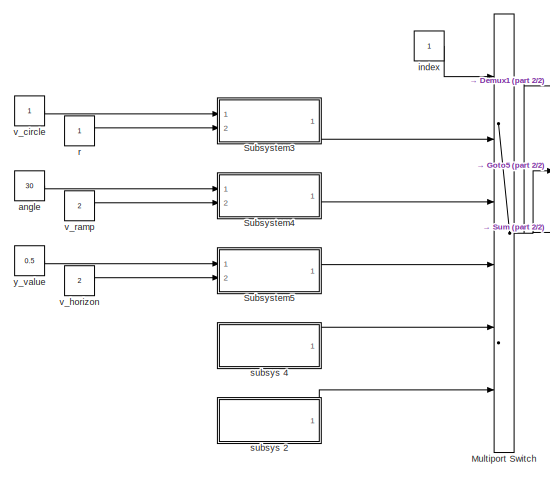
[diagram: root canvas - part 1/2, middle left region]
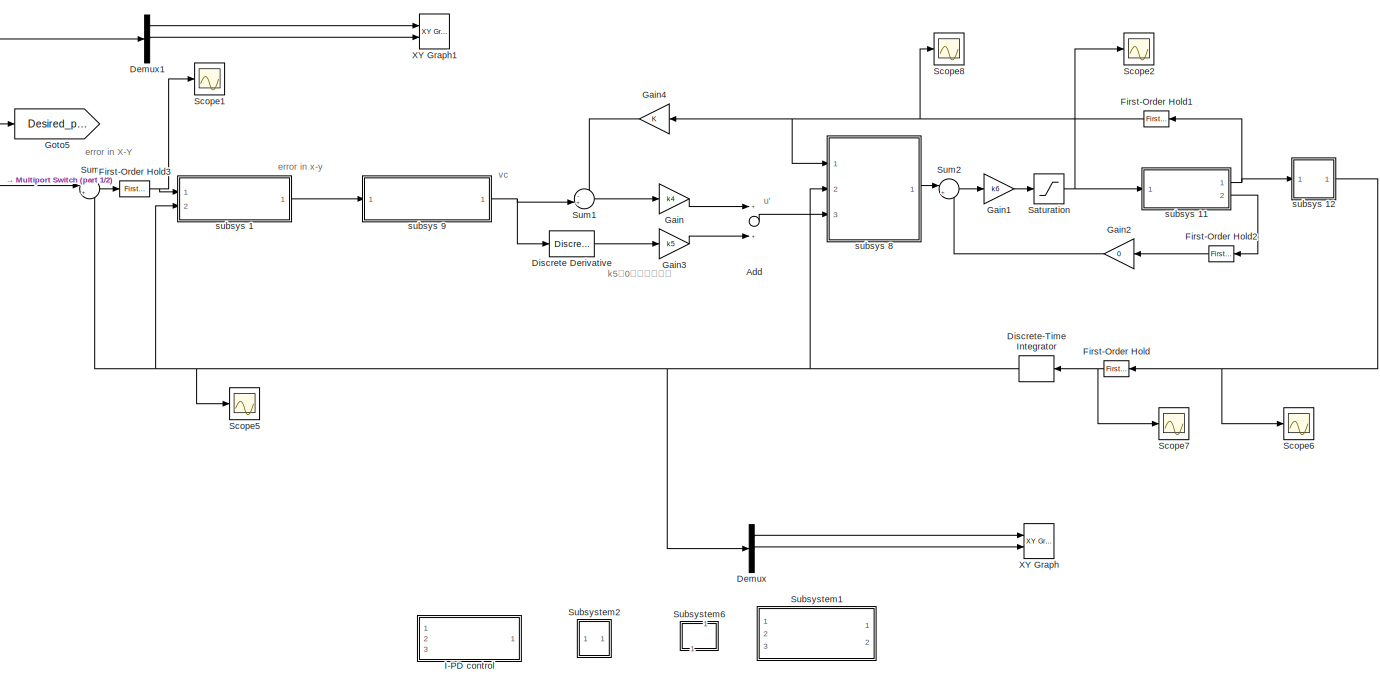
[diagram: root canvas - part 2/2, center side, full height]
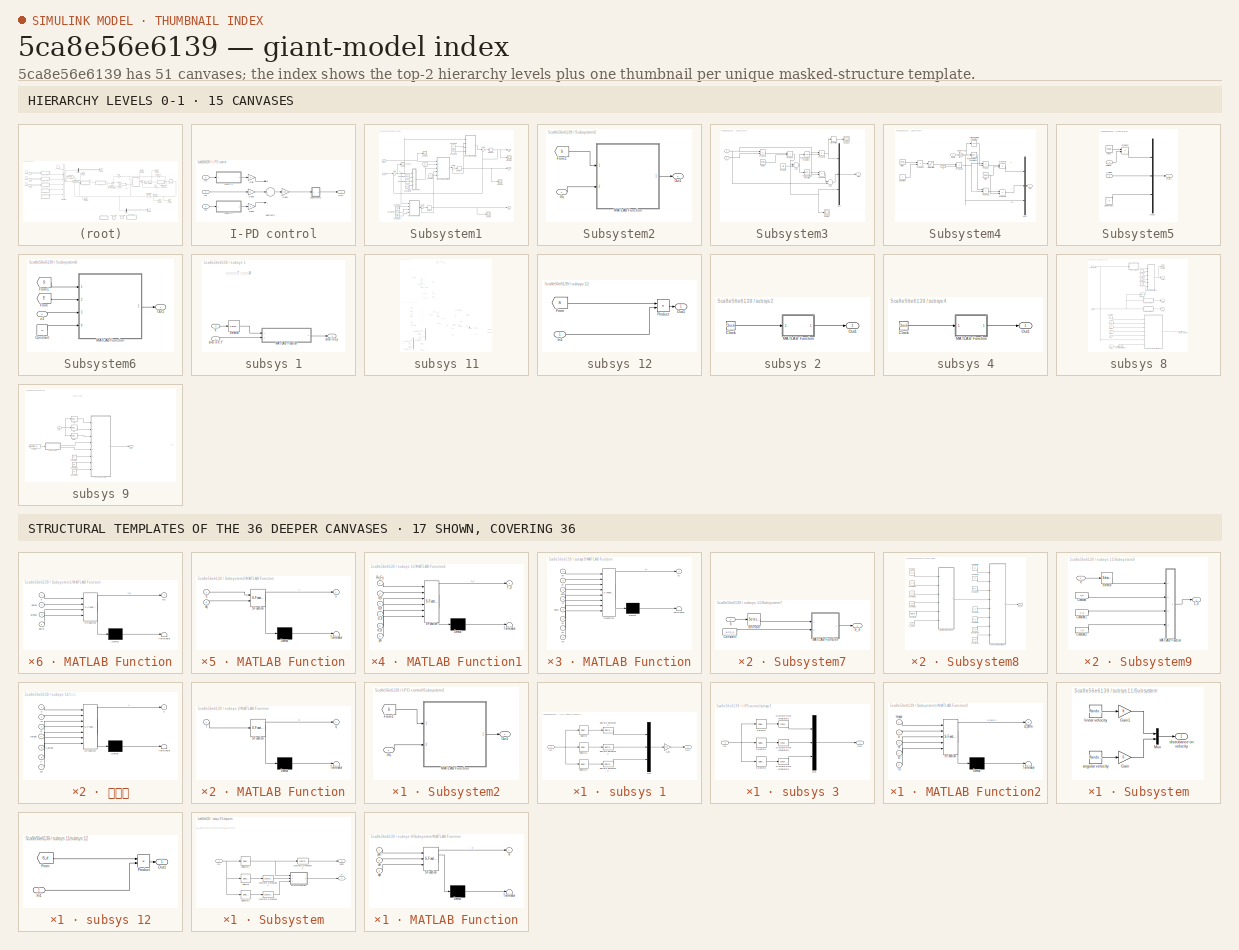
[diagram: thumbnail index - top-2 hierarchy levels (15 canvases) + 17 structural-template representatives of the remaining 36 canvases]
MODEL slx_5ca8e56e6139
KIND model
CONFIG AbsTol = auto
CONFIG EnableMultiTasking = off
CONFIG FixedStep = 0.001
CONFIG MaxStep = auto
CONFIG MinStep = auto
CONFIG RelTol = 1e-3
CONFIG SampleTimeConstraint = Unconstrained
CONFIG Solver = FixedStepAuto
CONFIG SolverName = FixedStepAuto
CONFIG StartTime = 0.0
CONFIG StopTime = 60
BLOCK [Sum] Add
  InputSameDT = off
  OutDataTypeStr = Inherit: Inherit via internal rule
  Ports = [2, 1]
  SaturateOnIntegerOverflow = off
BLOCK [Demux] Demux
  DisplayOption = bar
  Outputs = 3
  Ports = [1, 3]
BLOCK [Demux] Demux1
  DisplayOption = bar
  Outputs = 3
  Ports = [1, 3]
BLOCK [Reference] Discrete Derivative  REF=simulink/Discrete/Discrete Derivative
  Ports = [1, 1]
  SourceBlock = simulink/Discrete/Discrete Derivative
  SourceProductBaseCode = SL
  SourceProductName = Simulink
  SourceType = Discrete Derivative
BLOCK [DiscreteIntegrator] Discrete-Time Integrator
  ICPrevOutput = DiscIntNeverNeededParam
  ICPrevScaledInput = DiscIntNeverNeededParam
  InitialConditionSetting = State (most efficient)
  Ports = [1, 1]
  SampleTime = 0.01
BLOCK [Reference] First-Order Hold  REF=simulink/Discrete/First-Order
Hold
  DisableCoverage = on
  Ports = [1, 1]
  SourceBlock = simulink/Discrete/First-Order\nHold
  SourceProductBaseCode = SL
  SourceProductName = Simulink
  SourceType = First-Order Hold
BLOCK [Reference] First-Order Hold1  REF=simulink/Discrete/First-Order
Hold
  DisableCoverage = on
  Ports = [1, 1]
  SourceBlock = simulink/Discrete/First-Order\nHold
  SourceProductBaseCode = SL
  SourceProductName = Simulink
  SourceType = First-Order Hold
BLOCK [Reference] First-Order Hold2  REF=simulink/Discrete/First-Order
Hold
  DisableCoverage = on
  Ports = [1, 1]
  SourceBlock = simulink/Discrete/First-Order\nHold
  SourceProductBaseCode = SL
  SourceProductName = Simulink
  SourceType = First-Order Hold
BLOCK [Reference] First-Order Hold3  REF=simulink/Discrete/First-Order
Hold
  DisableCoverage = on
  Ports = [1, 1]
  SourceBlock = simulink/Discrete/First-Order\nHold
  SourceProductBaseCode = SL
  SourceProductName = Simulink
  SourceType = First-Order Hold
BLOCK [Gain] Gain
  Gain = k4
  OutDataTypeStr = Inherit: Inherit via internal rule
  ParamDataTypeStr = Inherit: Inherit via internal rule
  SaturateOnIntegerOverflow = off
BLOCK [Gain] Gain1
  Gain = k6
  OutDataTypeStr = Inherit: Inherit via internal rule
  ParamDataTypeStr = Inherit: Inherit via internal rule
  SaturateOnIntegerOverflow = off
BLOCK [Gain] Gain2
  Gain = 0
  OutDataTypeStr = Inherit: Inherit via internal rule
  ParamDataTypeStr = Inherit: Inherit via internal rule
  SaturateOnIntegerOverflow = off
BLOCK [Gain] Gain3
  Gain = k5
  OutDataTypeStr = Inherit: Inherit via internal rule
  ParamDataTypeStr = Inherit: Inherit via internal rule
  SaturateOnIntegerOverflow = off
BLOCK [Gain] Gain4
  OutDataTypeStr = Inherit: Inherit via internal rule
  ParamDataTypeStr = Inherit: Inherit via internal rule
  SaturateOnIntegerOverflow = off
BLOCK [Goto] Goto5
  GotoTag = Desired_pose
  TagVisibility = global
BLOCK [SubSystem] I-PD control
  Commented = on
  Ports = [3, 1]
  RequestExecContextInheritance = off
  Variant = off
BLOCK [Gain] I-PD control/Gain
  OutDataTypeStr = Inherit: Inherit via internal rule
  ParamDataTypeStr = Inherit: Inherit via internal rule
  SaturateOnIntegerOverflow = off
BLOCK [Gain] I-PD control/Gain1
  Gain = kp
  OutDataTypeStr = Inherit: Inherit via internal rule
  ParamDataTypeStr = Inherit: Inherit via internal rule
  SaturateOnIntegerOverflow = off
BLOCK [Gain] I-PD control/Gain2
  OutDataTypeStr = Inherit: Inherit via internal rule
  ParamDataTypeStr = Inherit: Inherit via internal rule
  SaturateOnIntegerOverflow = off
BLOCK [Gain] I-PD control/Gain3
  OutDataTypeStr = Inherit: Inherit via internal rule
  ParamDataTypeStr = Inherit: Inherit via internal rule
  SaturateOnIntegerOverflow = off
BLOCK [Inport] I-PD control/In1
  IconDisplay = Port number
BLOCK [Inport] I-PD control/In2
  IconDisplay = Port number
  Port = 2
BLOCK [Inport] I-PD control/In3
  IconDisplay = Port number
  Port = 3
BLOCK [Outport] I-PD control/Out1
  IconDisplay = Port number
BLOCK [SubSystem] I-PD control/Subsystem2
  Ports = [1, 1]
  RequestExecContextInheritance = off
  Variant = off
BLOCK [From] I-PD control/Subsystem2/From1
  GotoTag = S
  TagVisibility = global
BLOCK [SubSystem] I-PD control/Subsystem2/MATLAB Function
  ErrorFcn = Stateflow.Translate.translate
  PermitHierarchicalResolution = ExplicitOnly
  Ports = [2, 1]
  RequestExecContextInheritance = off
  SFBlockType = MATLAB Function
  TreatAsAtomicUnit = on
  Variant = off
BLOCK [Demux] I-PD control/Subsystem2/MATLAB Function/ Demux 
  Outputs = 1
  Ports = [1, 1]
BLOCK [S-Function] I-PD control/Subsystem2/MATLAB Function/ SFunction 
  EnableBusSupport = on
  FunctionName = sf_sfun
  PortCounts = [2 2]
  Ports = [2, 2]
  SFcnIsStateOwnerBlock = off
  SFunctionDeploymentMode = off
  Tag = Stateflow S-Function revised_model 22
BLOCK [Terminator] I-PD control/Subsystem2/MATLAB Function/ Terminator 
BLOCK [Inport] I-PD control/Subsystem2/MATLAB Function/S
  IconDisplay = Port number
BLOCK [Inport] I-PD control/Subsystem2/MATLAB Function/dq
  IconDisplay = Port number
  Port = 2
BLOCK [Outport] I-PD control/Subsystem2/MATLAB Function/v
  IconDisplay = Port number
BLOCK [Outport] I-PD control/Subsystem2/Out1
  IconDisplay = Port number
BLOCK [Inport] I-PD control/Subsystem2/dq
  IconDisplay = Port number
BLOCK [Sum] I-PD control/Subtract4
  InputSameDT = off
  Inputs = +--
  OutDataTypeStr = Inherit: Inherit via internal rule
  Ports = [3, 1]
  SaturateOnIntegerOverflow = off
BLOCK [SubSystem] I-PD control/subsys 1
  Ports = [1, 1]
  RequestExecContextInheritance = off
  Variant = off
BLOCK [Reference] I-PD control/subsys 1/Discrete Derivative1  REF=simulink/Discrete/Discrete Derivative
  Ports = [1, 1]
  SourceBlock = simulink/Discrete/Discrete Derivative
  SourceProductBaseCode = SL
  SourceProductName = Simulink
  SourceType = Discrete Derivative
BLOCK [Reference] I-PD control/subsys 1/Discrete Derivative2  REF=simulink/Discrete/Discrete Derivative
  Ports = [1, 1]
  SourceBlock = simulink/Discrete/Discrete Derivative
  SourceProductBaseCode = SL
  SourceProductName = Simulink
  SourceType = Discrete Derivative
BLOCK [Reference] I-PD control/subsys 1/Discrete Derivative3  REF=simulink/Discrete/Discrete Derivative
  Ports = [1, 1]
  SourceBlock = simulink/Discrete/Discrete Derivative
  SourceProductBaseCode = SL
  SourceProductName = Simulink
  SourceType = Discrete Derivative
BLOCK [Gain] I-PD control/subsys 1/Gain
  Gain = 50
  OutDataTypeStr = Inherit: Inherit via internal rule
  ParamDataTypeStr = Inherit: Inherit via internal rule
  SaturateOnIntegerOverflow = off
BLOCK [Inport] I-PD control/subsys 1/In1
  IconDisplay = Port number
BLOCK [Mux] I-PD control/subsys 1/Mux
  DisplayOption = bar
  Inputs = 3
  Ports = [3, 1]
BLOCK [Outport] I-PD control/subsys 1/Out1
  IconDisplay = Port number
BLOCK [Selector] I-PD control/subsys 1/Selector
  IndexOptions = Index vector (dialog)
  Indices = [1]
  InputPortWidth = 3
  OutputSizes = 1
  Ports = [1, 1]
BLOCK [Selector] I-PD control/subsys 1/Selector1
  IndexOptions = Index vector (dialog)
  Indices = [2]
  InputPortWidth = 3
  OutputSizes = 1
  Ports = [1, 1]
BLOCK [Selector] I-PD control/subsys 1/Selector2
  IndexOptions = Index vector (dialog)
  Indices = [3]
  InputPortWidth = 3
  OutputSizes = 1
  Ports = [1, 1]
BLOCK [SubSystem] I-PD control/subsys 3
  Ports = [1, 1]
  RequestExecContextInheritance = off
  Variant = off
BLOCK [DiscreteIntegrator] I-PD control/subsys 3/Discrete-Time Integrator1
  ICPrevOutput = DiscIntNeverNeededParam
  ICPrevScaledInput = DiscIntNeverNeededParam
  InitialConditionSetting = State (most efficient)
  Ports = [1, 1]
  SampleTime = 0.01
BLOCK [DiscreteIntegrator] I-PD control/subsys 3/Discrete-Time Integrator2
  ICPrevOutput = DiscIntNeverNeededParam
  ICPrevScaledInput = DiscIntNeverNeededParam
  InitialConditionSetting = State (most efficient)
  Ports = [1, 1]
  SampleTime = 0.01
BLOCK [DiscreteIntegrator] I-PD control/subsys 3/Discrete-Time Integrator3
  ICPrevOutput = DiscIntNeverNeededParam
  ICPrevScaledInput = DiscIntNeverNeededParam
  InitialConditionSetting = State (most efficient)
  Ports = [1, 1]
  SampleTime = 0.01
BLOCK [Inport] I-PD control/subsys 3/In1
  IconDisplay = Port number
BLOCK [Mux] I-PD control/subsys 3/Mux
  DisplayOption = bar
  Inputs = 3
  Ports = [3, 1]
BLOCK [Outport] I-PD control/subsys 3/Out1
  IconDisplay = Port number
BLOCK [Selector] I-PD control/subsys 3/Selector
  IndexOptions = Index vector (dialog)
  Indices = [1]
  InputPortWidth = 3
  OutputSizes = 1
  Ports = [1, 1]
BLOCK [Selector] I-PD control/subsys 3/Selector1
  IndexOptions = Index vector (dialog)
  Indices = [2]
  InputPortWidth = 3
  OutputSizes = 1
  Ports = [1, 1]
BLOCK [Selector] I-PD control/subsys 3/Selector2
  IndexOptions = Index vector (dialog)
  Indices = [3]
  InputPortWidth = 3
  OutputSizes = 1
  Ports = [1, 1]
BLOCK [MultiPortSwitch] Multiport Switch
  InputSameDT = off
  Inputs = 5
  Ports = [6, 1]
  SaturateOnIntegerOverflow = off
BLOCK [Saturate] Saturation
  InputPortMap = u0
  LowerLimit = -3
  Ports = [1, 1]
  UpperLimit = 3
BLOCK [Scope] Scope1
  NumInputPorts = 1
  Ports = [1]
  ScopeSpecificationString = Simulink.scopes.TimeScopeBlockCfg('CurrentConfiguration', extmgr.ConfigurationSet(extmgr.Configuration('Core','General UI',true),extmgr.Configuration('Core','Source UI',true),extmgr.Configuration('Sources','WiredSimulink',true,'DataLoggingVariableName','ScopeData3'),extmgr.Configuration('Visuals','Time Domain',true,'SerializedDisplays',{struct('MinYLimReal','-12.84451','MaxYLimReal','31.814','YLab...<+1491ch>
BLOCK [Scope] Scope2
  NumInputPorts = 1
  Ports = [1]
  ScopeSpecificationString = Simulink.scopes.TimeScopeBlockCfg('CurrentConfiguration', extmgr.ConfigurationSet(extmgr.Configuration('Core','General UI',true),extmgr.Configuration('Core','Source UI',true),extmgr.Configuration('Sources','WiredSimulink',true,'DataLoggingVariableName','ScopeData4'),extmgr.Configuration('Visuals','Time Domain',true,'SerializedDisplays',{struct('MinYLimReal','-7.5','MaxYLimReal','7.5','YLabelReal',...<+1431ch>
BLOCK [Scope] Scope5
  NumInputPorts = 1
  Ports = [1]
  ScopeSpecificationString = Simulink.scopes.TimeScopeBlockCfg('CurrentConfiguration', extmgr.ConfigurationSet(extmgr.Configuration('Core','General UI',true),extmgr.Configuration('Core','Source UI',true),extmgr.Configuration('Sources','WiredSimulink',true,'DataLoggingVariableName','ScopeData8'),extmgr.Configuration('Visuals','Time Domain',true,'SerializedDisplays',{struct('MinYLimReal','-8.95712','MaxYLimReal','13.09478','YLa...<+1518ch>
BLOCK [Scope] Scope6
  NumInputPorts = 1
  Ports = [1]
  ScopeSpecificationString = Simulink.scopes.TimeScopeBlockCfg('CurrentConfiguration', extmgr.ConfigurationSet(extmgr.Configuration('Core','General UI',true),extmgr.Configuration('Core','Source UI',true),extmgr.Configuration('Sources','WiredSimulink',true,'DataLoggingVariableName','ScopeData10'),extmgr.Configuration('Visuals','Time Domain',true,'SerializedDisplays',{struct('MinYLimReal','-2.66727','MaxYLimReal','2.85021','YLa...<+1399ch>
BLOCK [Scope] Scope7
  NumInputPorts = 1
  Ports = [1]
  ScopeSpecificationString = Simulink.scopes.TimeScopeBlockCfg('CurrentConfiguration', extmgr.ConfigurationSet(extmgr.Configuration('Core','General UI',true),extmgr.Configuration('Core','Source UI',true),extmgr.Configuration('Sources','WiredSimulink',true,'DataLoggingVariableName','ScopeData11'),extmgr.Configuration('Visuals','Time Domain',true,'SerializedDisplays',{struct('MinYLimReal','-3.59146','MaxYLimReal','2.65898','YLa...<+1449ch>
BLOCK [Scope] Scope8
  NumInputPorts = 1
  Ports = [1]
  ScopeSpecificationString = Simulink.scopes.TimeScopeBlockCfg('CurrentConfiguration', extmgr.ConfigurationSet(extmgr.Configuration('Core','General UI',true),extmgr.Configuration('Core','Source UI',true),extmgr.Configuration('Sources','WiredSimulink',true,'DataLoggingVariableName','ScopeData12'),extmgr.Configuration('Visuals','Time Domain',true,'SerializedDisplays',{struct('MinYLimReal','-0.90167','MaxYLimReal','2.30967','YLa...<+1472ch>
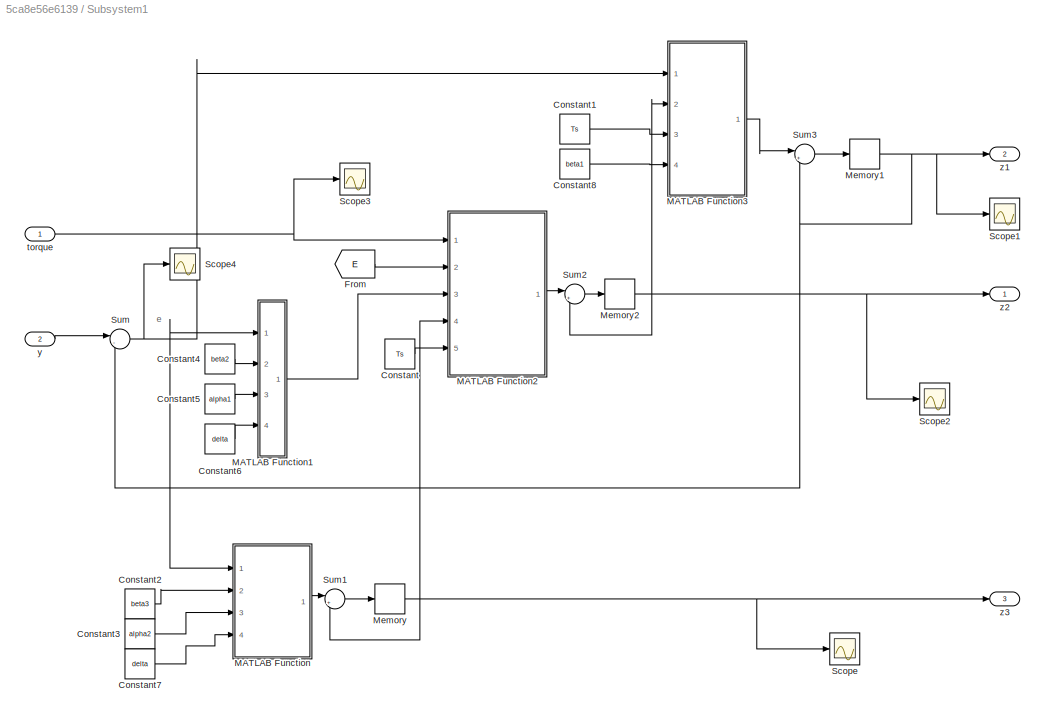
BLOCK [SubSystem] Subsystem1
  Commented = on
  Ports = [2, 3]
  RequestExecContextInheritance = off
  Variant = off
BLOCK [Constant] Subsystem1/Constant
  Value = Ts
BLOCK [Constant] Subsystem1/Constant1
  Value = Ts
BLOCK [Constant] Subsystem1/Constant2
  Value = beta3
BLOCK [Constant] Subsystem1/Constant3
  Value = alpha2
BLOCK [Constant] Subsystem1/Constant4
  Value = beta2
BLOCK [Constant] Subsystem1/Constant5
  Value = alpha1
BLOCK [Constant] Subsystem1/Constant6
  Value = delta
BLOCK [Constant] Subsystem1/Constant7
  Value = delta
BLOCK [Constant] Subsystem1/Constant8
  Value = beta1
BLOCK [From] Subsystem1/From
  GotoTag = E
  TagVisibility = global
BLOCK [SubSystem] Subsystem1/MATLAB Function
  ErrorFcn = Stateflow.Translate.translate
  PermitHierarchicalResolution = ExplicitOnly
  Ports = [4, 1]
  RequestExecContextInheritance = off
  SFBlockType = MATLAB Function
  TreatAsAtomicUnit = on
  Variant = off
BLOCK [Demux] Subsystem1/MATLAB Function/ Demux 
  Outputs = 1
  Ports = [1, 1]
BLOCK [S-Function] Subsystem1/MATLAB Function/ SFunction 
  EnableBusSupport = on
  FunctionName = sf_sfun
  PortCounts = [4 2]
  Ports = [4, 2]
  SFcnIsStateOwnerBlock = off
  SFunctionDeploymentMode = off
  Tag = Stateflow S-Function revised_model 11
BLOCK [Terminator] Subsystem1/MATLAB Function/ Terminator 
BLOCK [Inport] Subsystem1/MATLAB Function/alpha2
  IconDisplay = Port number
  Port = 3
BLOCK [Inport] Subsystem1/MATLAB Function/beta3
  IconDisplay = Port number
  Port = 2
BLOCK [Inport] Subsystem1/MATLAB Function/delta
  IconDisplay = Port number
  Port = 4
BLOCK [Inport] Subsystem1/MATLAB Function/e
  IconDisplay = Port number
BLOCK [Outport] Subsystem1/MATLAB Function/fe1
  IconDisplay = Port number
BLOCK [SubSystem] Subsystem1/MATLAB Function1
  ErrorFcn = Stateflow.Translate.translate
  PermitHierarchicalResolution = ExplicitOnly
  Ports = [4, 1]
  RequestExecContextInheritance = off
  SFBlockType = MATLAB Function
  TreatAsAtomicUnit = on
  Variant = off
BLOCK [Demux] Subsystem1/MATLAB Function1/ Demux 
  Outputs = 1
  Ports = [1, 1]
BLOCK [S-Function] Subsystem1/MATLAB Function1/ SFunction 
  EnableBusSupport = on
  FunctionName = sf_sfun
  PortCounts = [4 2]
  Ports = [4, 2]
  SFcnIsStateOwnerBlock = off
  SFunctionDeploymentMode = off
  Tag = Stateflow S-Function revised_model 12
BLOCK [Terminator] Subsystem1/MATLAB Function1/ Terminator 
BLOCK [Inport] Subsystem1/MATLAB Function1/alpha1
  IconDisplay = Port number
  Port = 3
BLOCK [Inport] Subsystem1/MATLAB Function1/beta2
  IconDisplay = Port number
  Port = 2
BLOCK [Inport] Subsystem1/MATLAB Function1/delta
  IconDisplay = Port number
  Port = 4
BLOCK [Inport] Subsystem1/MATLAB Function1/e
  IconDisplay = Port number
BLOCK [Outport] Subsystem1/MATLAB Function1/fe
  IconDisplay = Port number
BLOCK [SubSystem] Subsystem1/MATLAB Function2
  ErrorFcn = Stateflow.Translate.translate
  PermitHierarchicalResolution = ExplicitOnly
  Ports = [5, 1]
  RequestExecContextInheritance = off
  SFBlockType = MATLAB Function
  TreatAsAtomicUnit = on
  Variant = off
BLOCK [Demux] Subsystem1/MATLAB Function2/ Demux 
  Outputs = 1
  Ports = [1, 1]
BLOCK [S-Function] Subsystem1/MATLAB Function2/ SFunction 
  EnableBusSupport = on
  FunctionName = sf_sfun
  PortCounts = [5 2]
  Ports = [5, 2]
  SFcnIsStateOwnerBlock = off
  SFunctionDeploymentMode = off
  Tag = Stateflow S-Function revised_model 13
BLOCK [Terminator] Subsystem1/MATLAB Function2/ Terminator 
BLOCK [Inport] Subsystem1/MATLAB Function2/E
  IconDisplay = Port number
  Port = 2
BLOCK [Inport] Subsystem1/MATLAB Function2/Ts
  IconDisplay = Port number
  Port = 5
BLOCK [Inport] Subsystem1/MATLAB Function2/fe
  IconDisplay = Port number
  Port = 3
BLOCK [Inport] Subsystem1/MATLAB Function2/torque
  IconDisplay = Port number
BLOCK [Outport] Subsystem1/MATLAB Function2/z2_delta
  IconDisplay = Port number
BLOCK [Inport] Subsystem1/MATLAB Function2/z3
  IconDisplay = Port number
  Port = 4
BLOCK [SubSystem] Subsystem1/MATLAB Function3
  ErrorFcn = Stateflow.Translate.translate
  PermitHierarchicalResolution = ExplicitOnly
  Ports = [4, 1]
  RequestExecContextInheritance = off
  SFBlockType = MATLAB Function
  TreatAsAtomicUnit = on
  Variant = off
BLOCK [Demux] Subsystem1/MATLAB Function3/ Demux 
  Outputs = 1
  Ports = [1, 1]
BLOCK [S-Function] Subsystem1/MATLAB Function3/ SFunction 
  EnableBusSupport = on
  FunctionName = sf_sfun
  PortCounts = [4 2]
  Ports = [4, 2]
  SFcnIsStateOwnerBlock = off
  SFunctionDeploymentMode = off
  Tag = Stateflow S-Function revised_model 15
BLOCK [Terminator] Subsystem1/MATLAB Function3/ Terminator 
BLOCK [Inport] Subsystem1/MATLAB Function3/Ts
  IconDisplay = Port number
  Port = 3
BLOCK [Inport] Subsystem1/MATLAB Function3/beta1
  IconDisplay = Port number
  Port = 4
BLOCK [Inport] Subsystem1/MATLAB Function3/e
  IconDisplay = Port number
BLOCK [Outport] Subsystem1/MATLAB Function3/z1_delta
  IconDisplay = Port number
BLOCK [Inport] Subsystem1/MATLAB Function3/z2
  IconDisplay = Port number
  Port = 2
BLOCK [Memory] Subsystem1/Memory
  X0 = [0 0 0]
BLOCK [Memory] Subsystem1/Memory1
  X0 = [0 0 0]
BLOCK [Memory] Subsystem1/Memory2
  X0 = [0 0 0]
BLOCK [Scope] Subsystem1/Scope
  NumInputPorts = 1
  Ports = [1]
  ScopeSpecificationString = Simulink.scopes.TimeScopeBlockCfg('CurrentConfiguration', extmgr.ConfigurationSet(extmgr.Configuration('Core','General UI',true),extmgr.Configuration('Core','Source UI',true),extmgr.Configuration('Sources','WiredSimulink',true,'DataLoggingVariableName','ScopeData5'),extmgr.Configuration('Visuals','Time Domain',true,'SerializedDisplays',{struct('MinYLimReal','-678925.62449','MaxYLimReal','-169207.5...<+1498ch>
BLOCK [Scope] Subsystem1/Scope1
  NumInputPorts = 1
  Ports = [1]
  ScopeSpecificationString = Simulink.scopes.TimeScopeBlockCfg('CurrentConfiguration', extmgr.ConfigurationSet(extmgr.Configuration('Core','General UI',true),extmgr.Configuration('Core','Source UI',true),extmgr.Configuration('Sources','WiredSimulink',true,'DataLoggingVariableName','ScopeData6'),extmgr.Configuration('Visuals','Time Domain',true,'SerializedDisplays',{struct('MinYLimReal','-162848209.58072','MaxYLimReal','165349...<+1479ch>
BLOCK [Scope] Subsystem1/Scope2
  NumInputPorts = 1
  Ports = [1]
  ScopeSpecificationString = Simulink.scopes.TimeScopeBlockCfg('CurrentConfiguration', extmgr.ConfigurationSet(extmgr.Configuration('Core','General UI',true),extmgr.Configuration('Core','Source UI',true),extmgr.Configuration('Sources','WiredSimulink',true,'DataLoggingVariableName','ScopeData7'),extmgr.Configuration('Visuals','Time Domain',true,'SerializedDisplays',{struct('MinYLimReal','-1.22839','MaxYLimReal','1.93742','YLab...<+1436ch>
BLOCK [Scope] Subsystem1/Scope3
  NumInputPorts = 1
  Ports = [1]
  ScopeSpecificationString = Simulink.scopes.TimeScopeBlockCfg('CurrentConfiguration', extmgr.ConfigurationSet(extmgr.Configuration('Core','General UI',true),extmgr.Configuration('Core','Source UI',true),extmgr.Configuration('Sources','WiredSimulink',true,'DataLoggingVariableName','ScopeData8'),extmgr.Configuration('Visuals','Time Domain',true,'SerializedDisplays',{struct('MinYLimReal','-10486610996591429000000000000000000000...<+2641ch>
BLOCK [Scope] Subsystem1/Scope4
  NumInputPorts = 1
  Ports = [1]
  ScopeSpecificationString = Simulink.scopes.TimeScopeBlockCfg('CurrentConfiguration', extmgr.ConfigurationSet(extmgr.Configuration('Core','General UI',true),extmgr.Configuration('Core','Source UI',true),extmgr.Configuration('Sources','WiredSimulink',true,'DataLoggingVariableName','ScopeData2'),extmgr.Configuration('Visuals','Time Domain',true,'SerializedDisplays',{struct('MinYLimReal','-162848209.67409','MaxYLimReal','165349...<+1494ch>
BLOCK [Sum] Subsystem1/Sum
  IconShape = round
  InputSameDT = off
  Inputs = |-+
  OutDataTypeStr = Inherit: Inherit via internal rule
  Ports = [2, 1]
  SaturateOnIntegerOverflow = off
BLOCK [Sum] Subsystem1/Sum1
  IconShape = round
  InputSameDT = off
  Inputs = |++
  OutDataTypeStr = Inherit: Inherit via internal rule
  Ports = [2, 1]
  SaturateOnIntegerOverflow = off
BLOCK [Sum] Subsystem1/Sum2
  IconShape = round
  InputSameDT = off
  Inputs = |++
  OutDataTypeStr = Inherit: Inherit via internal rule
  Ports = [2, 1]
  SaturateOnIntegerOverflow = off
BLOCK [Sum] Subsystem1/Sum3
  IconShape = round
  InputSameDT = off
  Inputs = |++
  OutDataTypeStr = Inherit: Inherit via internal rule
  Ports = [2, 1]
  SaturateOnIntegerOverflow = off
BLOCK [Inport] Subsystem1/torque
  IconDisplay = Port number
BLOCK [Inport] Subsystem1/y
  IconDisplay = Port number
  Port = 2
BLOCK [Outport] Subsystem1/z1
  IconDisplay = Port number
  Port = 2
BLOCK [Outport] Subsystem1/z2
  IconDisplay = Port number
BLOCK [Outport] Subsystem1/z3
  IconDisplay = Port number
  Port = 3
BLOCK [SubSystem] Subsystem2
  Commented = on
  Ports = [1, 1]
  RequestExecContextInheritance = off
  Variant = off
BLOCK [From] Subsystem2/From1
  GotoTag = S
  TagVisibility = global
BLOCK [SubSystem] Subsystem2/MATLAB Function
  ErrorFcn = Stateflow.Translate.translate
  PermitHierarchicalResolution = ExplicitOnly
  Ports = [2, 1]
  RequestExecContextInheritance = off
  SFBlockType = MATLAB Function
  TreatAsAtomicUnit = on
  Variant = off
BLOCK [Demux] Subsystem2/MATLAB Function/ Demux 
  Outputs = 1
  Ports = [1, 1]
BLOCK [S-Function] Subsystem2/MATLAB Function/ SFunction 
  EnableBusSupport = on
  FunctionName = sf_sfun
  PortCounts = [2 2]
  Ports = [2, 2]
  SFcnIsStateOwnerBlock = off
  SFunctionDeploymentMode = off
  Tag = Stateflow S-Function revised_model 21
BLOCK [Terminator] Subsystem2/MATLAB Function/ Terminator 
BLOCK [Inport] Subsystem2/MATLAB Function/S
  IconDisplay = Port number
BLOCK [Inport] Subsystem2/MATLAB Function/dq
  IconDisplay = Port number
  Port = 2
BLOCK [Outport] Subsystem2/MATLAB Function/v
  IconDisplay = Port number
BLOCK [Outport] Subsystem2/Out1
  IconDisplay = Port number
BLOCK [Inport] Subsystem2/dq
  IconDisplay = Port number
BLOCK [SubSystem] Subsystem3
  Ports = [2, 1]
  RequestExecContextInheritance = off
  Variant = off
BLOCK [Sum] Subsystem3/Add
  InputSameDT = off
  OutDataTypeStr = Inherit: Inherit via internal rule
  Ports = [2, 1]
  SaturateOnIntegerOverflow = off
BLOCK [Sum] Subsystem3/Add1
  InputSameDT = off
  Inputs = +-
  OutDataTypeStr = Inherit: Inherit via internal rule
  Ports = [2, 1]
  SaturateOnIntegerOverflow = off
BLOCK [Constant] Subsystem3/Constant
  Value = pi / 2
BLOCK [Derivative] Subsystem3/Derivative
BLOCK [Mux] Subsystem3/Mux
  DisplayOption = bar
  Inputs = 3
  Ports = [3, 1]
BLOCK [Outport] Subsystem3/Out1
  IconDisplay = Port number
BLOCK [Product] Subsystem3/Product
  InputSameDT = off
  OutDataTypeStr = Inherit: Inherit via internal rule
  Ports = [2, 1]
  RndMeth = Floor
  SaturateOnIntegerOverflow = off
BLOCK [Product] Subsystem3/Product1
  InputSameDT = off
  Inputs = /*
  OutDataTypeStr = Inherit: Inherit via internal rule
  Ports = [2, 1]
  RndMeth = Floor
  SaturateOnIntegerOverflow = off
BLOCK [Product] Subsystem3/Product2
  InputSameDT = off
  OutDataTypeStr = Inherit: Inherit via internal rule
  Ports = [2, 1]
  RndMeth = Floor
  SaturateOnIntegerOverflow = off
BLOCK [Product] Subsystem3/Product3
  InputSameDT = off
  OutDataTypeStr = Inherit: Inherit via internal rule
  Ports = [2, 1]
  RndMeth = Floor
  SaturateOnIntegerOverflow = off
BLOCK [Reference] Subsystem3/Ramp  REF=simulink/Sources/Ramp
  Ports = [0, 1]
  SourceBlock = simulink/Sources/Ramp
  SourceProductBaseCode = SL
  SourceProductName = Simulink
  SourceType = Ramp
BLOCK [Scope] Subsystem3/Scope
  NumInputPorts = 1
  Ports = [1]
  ScopeSpecificationString = Simulink.scopes.TimeScopeBlockCfg('CurrentConfiguration', extmgr.ConfigurationSet(extmgr.Configuration('Core','General UI',true),extmgr.Configuration('Core','Source UI',true),extmgr.Configuration('Sources','WiredSimulink',true,'DataLoggingVariableName','ScopeData1'),extmgr.Configuration('Visuals','Time Domain',true,'SerializedDisplays',{struct('MinYLimReal','-0.00462','MaxYLimReal','0.04162','YLab...<+1396ch>
BLOCK [Scope] Subsystem3/Scope1
  NumInputPorts = 1
  Ports = [1]
  ScopeSpecificationString = Simulink.scopes.TimeScopeBlockCfg('CurrentConfiguration', extmgr.ConfigurationSet(extmgr.Configuration('Core','General UI',true),extmgr.Configuration('Core','Source UI',true),extmgr.Configuration('Sources','WiredSimulink',true,'DataLoggingVariableName','ScopeData14'),extmgr.Configuration('Visuals','Time Domain',true,'SerializedDisplays',{struct('MinYLimReal','-0.25','MaxYLimReal','2.25','YLabelRea...<+1406ch>
BLOCK [Trigonometry] Subsystem3/Trigonometric Function
  Ports = [1, 1]
BLOCK [Trigonometry] Subsystem3/Trigonometric Function1
  Operator = cos
  Ports = [1, 1]
BLOCK [Inport] Subsystem3/r
  IconDisplay = Port number
  Port = 2
BLOCK [Inport] Subsystem3/v
  IconDisplay = Port number
BLOCK [SubSystem] Subsystem4
  Ports = [2, 1]
  RequestExecContextInheritance = off
  Variant = off
BLOCK [Constant] Subsystem4/Constant
BLOCK [Mux] Subsystem4/Mux1
  DisplayOption = bar
  Inputs = 3
  Ports = [3, 1]
BLOCK [Outport] Subsystem4/Out1
  IconDisplay = Port number
BLOCK [Product] Subsystem4/Product
  InputSameDT = off
  OutDataTypeStr = Inherit: Inherit via internal rule
  Ports = [2, 1]
  RndMeth = Floor
  SaturateOnIntegerOverflow = off
BLOCK [Product] Subsystem4/Product1
  InputSameDT = off
  OutDataTypeStr = Inherit: Inherit via internal rule
  Ports = [2, 1]
  RndMeth = Floor
  SaturateOnIntegerOverflow = off
BLOCK [Product] Subsystem4/Product2
  InputSameDT = off
  OutDataTypeStr = Inherit: Inherit via internal rule
  Ports = [2, 1]
  RndMeth = Floor
  SaturateOnIntegerOverflow = off
BLOCK [Product] Subsystem4/Product3
  InputSameDT = off
  OutDataTypeStr = Inherit: Inherit via internal rule
  Ports = [2, 1]
  RndMeth = Floor
  SaturateOnIntegerOverflow = off
BLOCK [Product] Subsystem4/Product4
  InputSameDT = off
  OutDataTypeStr = Inherit: Inherit via internal rule
  Ports = [2, 1]
  RndMeth = Floor
  SaturateOnIntegerOverflow = off
BLOCK [Product] Subsystem4/Product5
  InputSameDT = off
  OutDataTypeStr = Inherit: Inherit via internal rule
  Ports = [2, 1]
  RndMeth = Floor
  SaturateOnIntegerOverflow = off
BLOCK [Saturate] Subsystem4/Saturation
  InputPortMap = u0
  LowerLimit = 0
  Ports = [1, 1]
  UpperLimit = 1
BLOCK [Trigonometry] Subsystem4/Trigonometric Function1
  Operator = cos
  Ports = [1, 1]
BLOCK [Trigonometry] Subsystem4/Trigonometric Function2
  Ports = [1, 1]
BLOCK [Gain] Subsystem4/angel->rad
  Gain = 1/180*pi
  OutDataTypeStr = Inherit: Inherit via internal rule
  ParamDataTypeStr = Inherit: Inherit via internal rule
  SaturateOnIntegerOverflow = off
BLOCK [Inport] Subsystem4/angle
  IconDisplay = Port number
BLOCK [Reference] Subsystem4/time  REF=simulink/Sources/Ramp
  Ports = [0, 1]
  SourceBlock = simulink/Sources/Ramp
  SourceProductBaseCode = SL
  SourceProductName = Simulink
  SourceType = Ramp
BLOCK [Reference] Subsystem4/time1  REF=simulink/Sources/Ramp
  Ports = [0, 1]
  SourceBlock = simulink/Sources/Ramp
  SourceProductBaseCode = SL
  SourceProductName = Simulink
  SourceType = Ramp
BLOCK [Inport] Subsystem4/v
  IconDisplay = Port number
  Port = 2
BLOCK [SubSystem] Subsystem5
  Ports = [2, 1]
  RequestExecContextInheritance = off
  Variant = off
BLOCK [Constant] Subsystem5/Constant2
  Value = 0
BLOCK [Mux] Subsystem5/Mux1
  DisplayOption = bar
  Inputs = 3
  Ports = [3, 1]
BLOCK [Outport] Subsystem5/Out1
  IconDisplay = Port number
BLOCK [Product] Subsystem5/Product
  InputSameDT = off
  OutDataTypeStr = Inherit: Inherit via internal rule
  Ports = [2, 1]
  RndMeth = Floor
  SaturateOnIntegerOverflow = off
BLOCK [Reference] Subsystem5/time  REF=simulink/Sources/Ramp
  Ports = [0, 1]
  SourceBlock = simulink/Sources/Ramp
  SourceProductBaseCode = SL
  SourceProductName = Simulink
  SourceType = Ramp
BLOCK [Inport] Subsystem5/velocity
  IconDisplay = Port number
  Port = 2
BLOCK [Inport] Subsystem5/y_value
  IconDisplay = Port number
BLOCK [SubSystem] Subsystem6
  Commented = on
  Ports = [1, 1]
  RequestExecContextInheritance = off
  Variant = off
BLOCK [Constant] Subsystem6/Constant
  Value = M
BLOCK [From] Subsystem6/From
  GotoTag = E
  TagVisibility = global
BLOCK [From] Subsystem6/From1
  GotoTag = S
  TagVisibility = global
BLOCK [SubSystem] Subsystem6/MATLAB Function
  ErrorFcn = Stateflow.Translate.translate
  PermitHierarchicalResolution = ExplicitOnly
  Ports = [4, 1]
  RequestExecContextInheritance = off
  SFBlockType = MATLAB Function
  TreatAsAtomicUnit = on
  Variant = off
BLOCK [Demux] Subsystem6/MATLAB Function/ Demux 
  Outputs = 1
  Ports = [1, 1]
BLOCK [S-Function] Subsystem6/MATLAB Function/ SFunction 
  EnableBusSupport = on
  FunctionName = sf_sfun
  PortCounts = [4 2]
  Ports = [4, 2]
  SFcnIsStateOwnerBlock = off
  SFunctionDeploymentMode = off
  Tag = Stateflow S-Function revised_model 17
BLOCK [Terminator] Subsystem6/MATLAB Function/ Terminator 
BLOCK [Inport] Subsystem6/MATLAB Function/B
  IconDisplay = Port number
  Port = 2
BLOCK [Inport] Subsystem6/MATLAB Function/M
  IconDisplay = Port number
  Port = 4
BLOCK [Inport] Subsystem6/MATLAB Function/S
  IconDisplay = Port number
BLOCK [Outport] Subsystem6/MATLAB Function/torque_feedback
  IconDisplay = Port number
BLOCK [Inport] Subsystem6/MATLAB Function/z3
  IconDisplay = Port number
  Port = 3
BLOCK [Outport] Subsystem6/Out1
  IconDisplay = Port number
BLOCK [Inport] Subsystem6/z3
  IconDisplay = Port number
BLOCK [Sum] Sum
  IconShape = round
  InputSameDT = off
  Inputs = |+-
  OutDataTypeStr = Inherit: Inherit via internal rule
  Ports = [2, 1]
  SaturateOnIntegerOverflow = off
BLOCK [Sum] Sum1
  IconShape = round
  InputSameDT = off
  Inputs = -+|
  OutDataTypeStr = Inherit: Inherit via internal rule
  Ports = [2, 1]
  SaturateOnIntegerOverflow = off
BLOCK [Sum] Sum2
  IconShape = round
  InputSameDT = off
  Inputs = |+-
  OutDataTypeStr = Inherit: Inherit via internal rule
  Ports = [2, 1]
  SaturateOnIntegerOverflow = off
BLOCK [Reference] XY Graph  REF=simulink/Sinks/XY Graph
  Ports = [2]
  SourceBlock = simulink/Sinks/XY Graph
  SourceProductBaseCode = SL
  SourceProductName = Simulink
  SourceType = XY scope.
BLOCK [Reference] XY Graph1  REF=simulink/Sinks/XY Graph
  Ports = [2]
  SourceBlock = simulink/Sinks/XY Graph
  SourceProductBaseCode = SL
  SourceProductName = Simulink
  SourceType = XY scope.
BLOCK [Constant] angle
  Value = 30
BLOCK [Constant] index
BLOCK [Constant] r
BLOCK [SubSystem] subsys 1
  Ports = [2, 1]
  RequestExecContextInheritance = off
  Variant = off
BLOCK [SubSystem] subsys 1/MATLAB Function
  ErrorFcn = Stateflow.Translate.translate
  PermitHierarchicalResolution = ExplicitOnly
  Ports = [2, 1]
  RequestExecContextInheritance = off
  SFBlockType = MATLAB Function
  TreatAsAtomicUnit = on
  Variant = off
BLOCK [Demux] subsys 1/MATLAB Function/ Demux 
  Outputs = 1
  Ports = [1, 1]
BLOCK [S-Function] subsys 1/MATLAB Function/ SFunction 
  EnableBusSupport = on
  FunctionName = sf_sfun
  PortCounts = [2 2]
  Ports = [2, 2]
  SFcnIsStateOwnerBlock = off
  SFunctionDeploymentMode = off
  Tag = Stateflow S-Function revised_model 1
BLOCK [Terminator] subsys 1/MATLAB Function/ Terminator 
BLOCK [Inport] subsys 1/MATLAB Function/error_in_X_Y
  IconDisplay = Port number
  Port = 2
BLOCK [Outport] subsys 1/MATLAB Function/error_in_x_y
  IconDisplay = Port number
BLOCK [Inport] subsys 1/MATLAB Function/phi
  IconDisplay = Port number
BLOCK [Selector] subsys 1/Selector
  IndexOptions = Index vector (dialog)
  Indices = [3]
  InputPortWidth = 3
  OutputSizes = 1
  Ports = [1, 1]
BLOCK [Inport] subsys 1/error in X-Y
  IconDisplay = Port number
BLOCK [Outport] subsys 1/error in x-y
  IconDisplay = Port number
BLOCK [Inport] subsys 1/q
  IconDisplay = Port number
  Port = 2
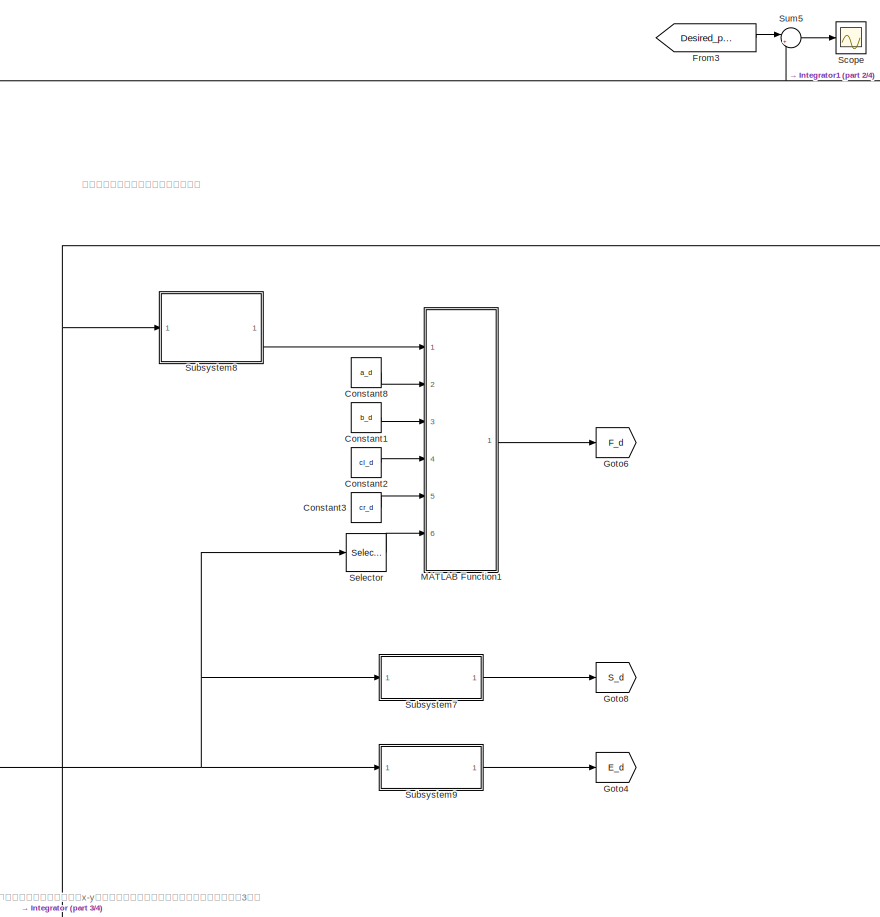
[diagram: subsys 11 - part 1/4, top left region]
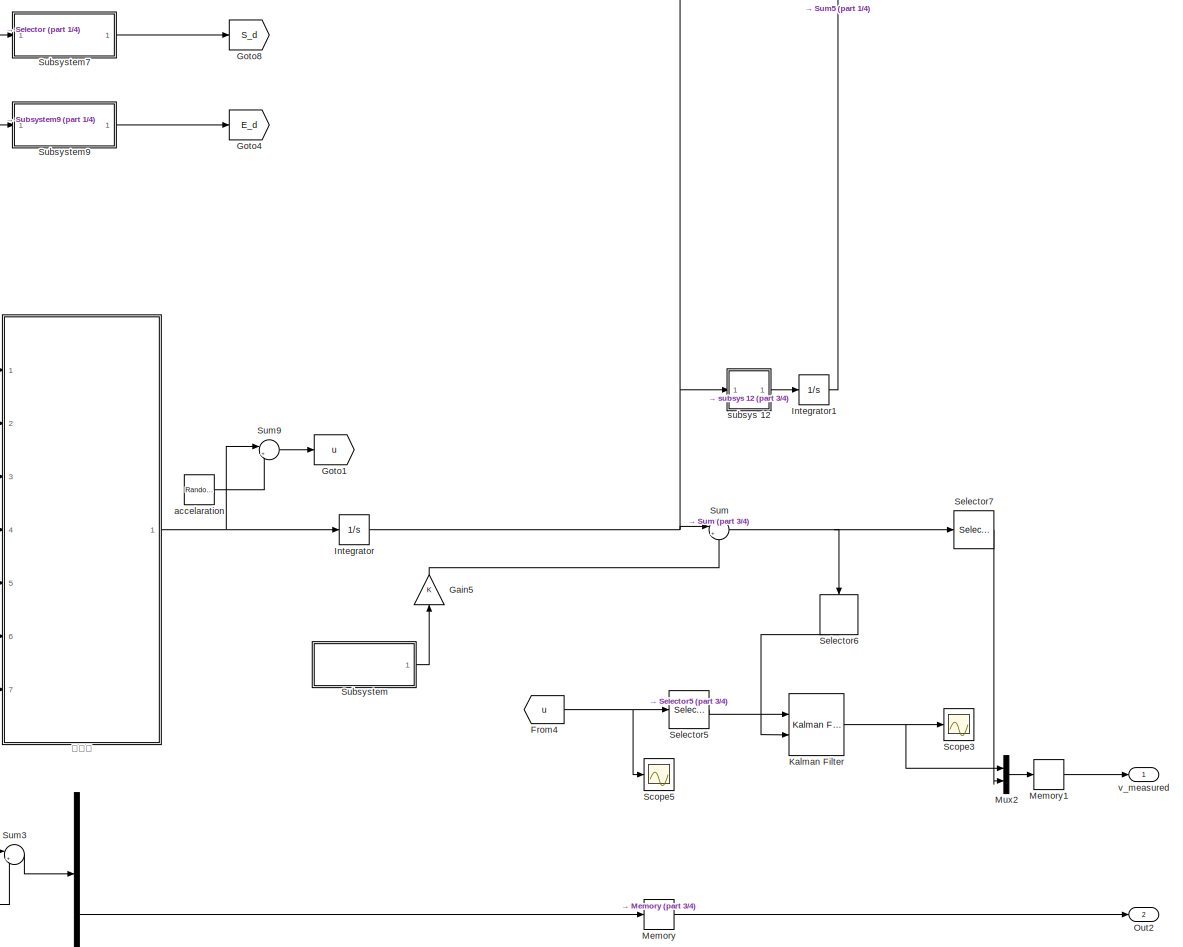
[diagram: subsys 11 - part 2/4, central region]
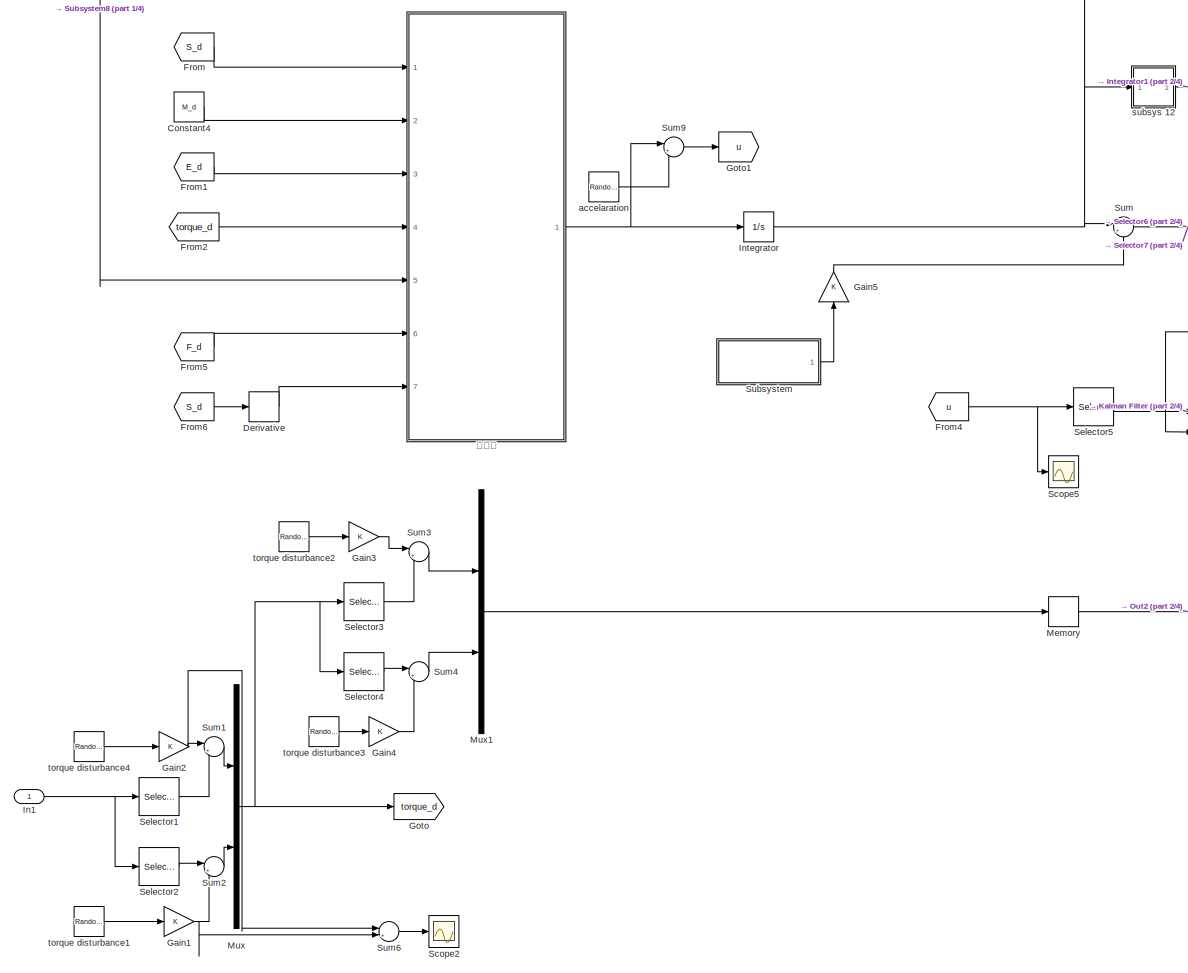
[diagram: subsys 11 - part 3/4, bottom left region]
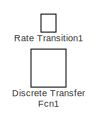
[diagram: subsys 11 - part 4/4, bottom right region]
BLOCK [SubSystem] subsys 11
  Ports = [1, 2]
  RequestExecContextInheritance = off
  Variant = off
BLOCK [Constant] subsys 11/Constant1
  Value = b_d
BLOCK [Constant] subsys 11/Constant2
  Value = cl_d
BLOCK [Constant] subsys 11/Constant3
  Value = cr_d
BLOCK [Constant] subsys 11/Constant4
  Value = M_d
BLOCK [Constant] subsys 11/Constant8
  Value = a_d
BLOCK [Derivative] subsys 11/Derivative
BLOCK [DiscreteTransferFcn] subsys 11/Discrete Transfer Fcn1
  Commented = on
  Denominator = [1 0]
  InputPortMap = u0
  Ports = [1, 1]
  SampleTime = 0.01
BLOCK [From] subsys 11/From
  GotoTag = S_d
  TagVisibility = global
BLOCK [From] subsys 11/From1
  GotoTag = E_d
  TagVisibility = global
BLOCK [From] subsys 11/From2
  GotoTag = torque_d
BLOCK [From] subsys 11/From3
  GotoTag = Desired_pose
  TagVisibility = global
BLOCK [From] subsys 11/From4
  GotoTag = u
  TagVisibility = global
BLOCK [From] subsys 11/From5
  GotoTag = F_d
  TagVisibility = global
BLOCK [From] subsys 11/From6
  GotoTag = S_d
  TagVisibility = global
BLOCK [Gain] subsys 11/Gain1
  OutDataTypeStr = Inherit: Inherit via internal rule
  ParamDataTypeStr = Inherit: Inherit via internal rule
  SaturateOnIntegerOverflow = off
BLOCK [Gain] subsys 11/Gain2
  OutDataTypeStr = Inherit: Inherit via internal rule
  ParamDataTypeStr = Inherit: Inherit via internal rule
  SaturateOnIntegerOverflow = off
BLOCK [Gain] subsys 11/Gain3
  OutDataTypeStr = Inherit: Inherit via internal rule
  ParamDataTypeStr = Inherit: Inherit via internal rule
  SaturateOnIntegerOverflow = off
BLOCK [Gain] subsys 11/Gain4
  OutDataTypeStr = Inherit: Inherit via internal rule
  ParamDataTypeStr = Inherit: Inherit via internal rule
  SaturateOnIntegerOverflow = off
BLOCK [Gain] subsys 11/Gain5
  OutDataTypeStr = Inherit: Inherit via internal rule
  ParamDataTypeStr = Inherit: Inherit via internal rule
  SaturateOnIntegerOverflow = off
BLOCK [Goto] subsys 11/Goto
  GotoTag = torque_d
BLOCK [Goto] subsys 11/Goto1
  GotoTag = u
  TagVisibility = global
BLOCK [Goto] subsys 11/Goto4
  GotoTag = E_d
  TagVisibility = global
BLOCK [Goto] subsys 11/Goto6
  GotoTag = F_d
  TagVisibility = global
BLOCK [Goto] subsys 11/Goto8
  GotoTag = S_d
  TagVisibility = global
BLOCK [Inport] subsys 11/In1
  IconDisplay = Port number
BLOCK [Integrator] subsys 11/Integrator
  InitialCondition = [0 0]
  Ports = [1, 1]
BLOCK [Integrator] subsys 11/Integrator1
  Ports = [1, 1]
BLOCK [Reference] subsys 11/Kalman Filter  REF=ctrlSharedLib/Kalman Filter
  Ports = [2, 1]
  SourceBlock = ctrlSharedLib/Kalman Filter
  SourceType = ctrlKalmanFilter
BLOCK [SubSystem] subsys 11/MATLAB Function1
  ErrorFcn = Stateflow.Translate.translate
  PermitHierarchicalResolution = ExplicitOnly
  Ports = [6, 1]
  RequestExecContextInheritance = off
  SFBlockType = MATLAB Function
  TreatAsAtomicUnit = on
  Variant = off
BLOCK [Demux] subsys 11/MATLAB Function1/ Demux 
  Outputs = 1
  Ports = [1, 1]
BLOCK [S-Function] subsys 11/MATLAB Function1/ SFunction 
  EnableBusSupport = on
  FunctionName = sf_sfun
  PortCounts = [6 2]
  Ports = [6, 2]
  SFcnIsStateOwnerBlock = off
  SFunctionDeploymentMode = off
  Tag = Stateflow S-Function revised_model 6
BLOCK [Terminator] subsys 11/MATLAB Function1/ Terminator 
BLOCK [Outport] subsys 11/MATLAB Function1/F_d
  IconDisplay = Port number
BLOCK [Inport] subsys 11/MATLAB Function1/Rx_Fy
  IconDisplay = Port number
BLOCK [Inport] subsys 11/MATLAB Function1/a_d
  IconDisplay = Port number
  Port = 2
BLOCK [Inport] subsys 11/MATLAB Function1/b_d
  IconDisplay = Port number
  Port = 3
BLOCK [Inport] subsys 11/MATLAB Function1/cl_d
  IconDisplay = Port number
  Port = 4
BLOCK [Inport] subsys 11/MATLAB Function1/cr_d
  IconDisplay = Port number
  Port = 5
BLOCK [Inport] subsys 11/MATLAB Function1/phi
  IconDisplay = Port number
  Port = 6
BLOCK [Memory] subsys 11/Memory
BLOCK [Memory] subsys 11/Memory1
  X0 = [0 0]
BLOCK [Mux] subsys 11/Mux
  DisplayOption = bar
  Inputs = 2
  Ports = [2, 1]
BLOCK [Mux] subsys 11/Mux1
  DisplayOption = bar
  Inputs = 2
  Ports = [2, 1]
BLOCK [Mux] subsys 11/Mux2
  DisplayOption = bar
  Inputs = 2
  Ports = [2, 1]
BLOCK [Outport] subsys 11/Out2
  IconDisplay = Port number
  Port = 2
BLOCK [RateTransition] subsys 11/Rate Transition1
  Commented = on
  OutPortSampleTime = 0.01
BLOCK [Scope] subsys 11/Scope
  NumInputPorts = 1
  Ports = [1]
  ScopeSpecificationString = Simulink.scopes.TimeScopeBlockCfg('CurrentConfiguration', extmgr.ConfigurationSet(extmgr.Configuration('Core','General UI',true),extmgr.Configuration('Core','Source UI',true),extmgr.Configuration('Sources','WiredSimulink',true,'DataLoggingVariableName','ScopeData5'),extmgr.Configuration('Visuals','Time Domain',true,'SerializedDisplays',{struct('MinYLimReal','-0.939','MaxYLimReal','7.13554','YLabel...<+1452ch>
BLOCK [Scope] subsys 11/Scope2
  NumInputPorts = 1
  Ports = [1]
  ScopeSpecificationString = Simulink.scopes.TimeScopeBlockCfg('CurrentConfiguration', extmgr.ConfigurationSet(extmgr.Configuration('Core','General UI',true),extmgr.Configuration('Core','Source UI',true),extmgr.Configuration('Sources','WiredSimulink',true,'DataLoggingVariableName','ScopeData4'),extmgr.Configuration('Visuals','Time Domain',true,'SerializedDisplays',{struct('MinYLimReal','-0.38276','MaxYLimReal','0.39988','YLab...<+1390ch>
BLOCK [Scope] subsys 11/Scope3
  NumInputPorts = 1
  Ports = [1]
  ScopeSpecificationString = Simulink.scopes.TimeScopeBlockCfg('CurrentConfiguration', extmgr.ConfigurationSet(extmgr.Configuration('Core','General UI',true),extmgr.Configuration('Core','Source UI',true),extmgr.Configuration('Sources','WiredSimulink',true,'DataLoggingVariableName','ScopeData7'),extmgr.Configuration('Visuals','Time Domain',true,'SerializedDisplays',{struct('MinYLimReal','-0.9972','MaxYLimReal','4.29211','YLabe...<+1441ch>
BLOCK [Scope] subsys 11/Scope5
  NumInputPorts = 1
  Ports = [1]
  ScopeSpecificationString = Simulink.scopes.TimeScopeBlockCfg('CurrentConfiguration', extmgr.ConfigurationSet(extmgr.Configuration('Core','General UI',true),extmgr.Configuration('Core','Source UI',true),extmgr.Configuration('Sources','WiredSimulink',true,'DataLoggingVariableName','ScopeData9'),extmgr.Configuration('Visuals','Time Domain',true,'SerializedDisplays',{struct('MinYLimReal','-14.23284','MaxYLimReal','14.40554','YL...<+1407ch>
BLOCK [Selector] subsys 11/Selector
  IndexOptions = Index vector (dialog)
  Indices = [3]
  InputPortWidth = 3
  OutputSizes = 1
  Ports = [1, 1]
BLOCK [Selector] subsys 11/Selector1
  IndexOptions = Index vector (dialog)
  Indices = [1]
  InputPortWidth = 2
  OutputSizes = 1
  Ports = [1, 1]
BLOCK [Selector] subsys 11/Selector2
  IndexOptions = Index vector (dialog)
  Indices = [2]
  InputPortWidth = 2
  OutputSizes = 1
  Ports = [1, 1]
BLOCK [Selector] subsys 11/Selector3
  IndexOptions = Index vector (dialog)
  Indices = [1]
  InputPortWidth = 2
  OutputSizes = 1
  Ports = [1, 1]
BLOCK [Selector] subsys 11/Selector4
  IndexOptions = Index vector (dialog)
  Indices = [2]
  InputPortWidth = 2
  OutputSizes = 1
  Ports = [1, 1]
BLOCK [Selector] subsys 11/Selector5
  IndexOptions = Index vector (dialog)
  Indices = [1]
  InputPortWidth = 2
  OutputSizes = 1
  Ports = [1, 1]
BLOCK [Selector] subsys 11/Selector6
  IndexOptions = Index vector (dialog)
  Indices = [1]
  InputPortWidth = 2
  OutputSizes = 1
  Ports = [1, 1]
BLOCK [Selector] subsys 11/Selector7
  IndexOptions = Index vector (dialog)
  Indices = [2]
  InputPortWidth = 2
  OutputSizes = 1
  Ports = [1, 1]
BLOCK [SubSystem] subsys 11/Subsystem
  Ports = [0, 1]
  RequestExecContextInheritance = off
  Variant = off
BLOCK [Gain] subsys 11/Subsystem/Gain
  Gain = 0
  OutDataTypeStr = Inherit: Inherit via internal rule
  ParamDataTypeStr = Inherit: Inherit via internal rule
  SaturateOnIntegerOverflow = off
BLOCK [Gain] subsys 11/Subsystem/Gain1
  OutDataTypeStr = Inherit: Inherit via internal rule
  ParamDataTypeStr = Inherit: Inherit via internal rule
  SaturateOnIntegerOverflow = off
BLOCK [Mux] subsys 11/Subsystem/Mux
  DisplayOption = bar
  Inputs = 2
  Ports = [2, 1]
BLOCK [RandomNumber] subsys 11/Subsystem/angular velocity
  SampleTime = 0.01
  Seed = 5
  Variance = 0.0016
BLOCK [Outport] subsys 11/Subsystem/distrubance on velocity
  IconDisplay = Port number
BLOCK [RandomNumber] subsys 11/Subsystem/linear velocity
  SampleTime = 0.01
  Seed = 4
  Variance = 0.0016
BLOCK [SubSystem] subsys 11/Subsystem7
  Ports = [1, 1]
  RequestExecContextInheritance = off
  Variant = off
BLOCK [Constant] subsys 11/Subsystem7/Constant
  Value = XICR_d
BLOCK [SubSystem] subsys 11/Subsystem7/MATLAB Function
  ErrorFcn = Stateflow.Translate.translate
  PermitHierarchicalResolution = ExplicitOnly
  Ports = [2, 1]
  RequestExecContextInheritance = off
  SFBlockType = MATLAB Function
  TreatAsAtomicUnit = on
  Variant = off
BLOCK [Demux] subsys 11/Subsystem7/MATLAB Function/ Demux 
  Outputs = 1
  Ports = [1, 1]
BLOCK [S-Function] subsys 11/Subsystem7/MATLAB Function/ SFunction 
  EnableBusSupport = on
  FunctionName = sf_sfun
  PortCounts = [2 2]
  Ports = [2, 2]
  SFcnIsStateOwnerBlock = off
  SFunctionDeploymentMode = off
  Tag = Stateflow S-Function revised_model 7
BLOCK [Terminator] subsys 11/Subsystem7/MATLAB Function/ Terminator 
BLOCK [Inport] subsys 11/Subsystem7/MATLAB Function/XICR_d
  IconDisplay = Port number
  Port = 2
BLOCK [Inport] subsys 11/Subsystem7/MATLAB Function/phi
  IconDisplay = Port number
BLOCK [Outport] subsys 11/Subsystem7/MATLAB Function/y
  IconDisplay = Port number
BLOCK [Outport] subsys 11/Subsystem7/S_d
  IconDisplay = Port number
BLOCK [Selector] subsys 11/Subsystem7/Selector
  IndexOptions = Index vector (dialog)
  Indices = [3]
  InputPortWidth = 3
  OutputSizes = 1
  Ports = [1, 1]
BLOCK [Inport] subsys 11/Subsystem7/q
  IconDisplay = Port number
BLOCK [SubSystem] subsys 11/Subsystem8
  Ports = [1, 1]
  RequestExecContextInheritance = off
  Variant = off
BLOCK [Constant] subsys 11/Subsystem8/Constant
  Value = a_d
BLOCK [Constant] subsys 11/Subsystem8/Constant1
  Value = b_d
BLOCK [Constant] subsys 11/Subsystem8/Constant10
  Value = cl_d
BLOCK [Constant] subsys 11/Subsystem8/Constant11
  Value = cr_d
BLOCK [Constant] subsys 11/Subsystem8/Constant2
  Value = cl_d
BLOCK [Constant] subsys 11/Subsystem8/Constant3
  Value = cr_d
BLOCK [Constant] subsys 11/Subsystem8/Constant4
  Value = XICR_d
BLOCK [Constant] subsys 11/Subsystem8/Constant5
  Value = ux
BLOCK [Constant] subsys 11/Subsystem8/Constant6
  Value = uy
BLOCK [Constant] subsys 11/Subsystem8/Constant7
  Value = m_d
BLOCK [Constant] subsys 11/Subsystem8/Constant8
  Value = a_d
BLOCK [Constant] subsys 11/Subsystem8/Constant9
  Value = b_d
BLOCK [SubSystem] subsys 11/Subsystem8/MATLAB Function5
  ErrorFcn = Stateflow.Translate.translate
  PermitHierarchicalResolution = ExplicitOnly
  Ports = [8, 1]
  RequestExecContextInheritance = off
  SFBlockType = MATLAB Function
  TreatAsAtomicUnit = on
  Variant = off
BLOCK [Demux] subsys 11/Subsystem8/MATLAB Function5/ Demux 
  Outputs = 1
  Ports = [1, 1]
BLOCK [S-Function] subsys 11/Subsystem8/MATLAB Function5/ SFunction 
  EnableBusSupport = on
  FunctionName = sf_sfun
  PortCounts = [8 2]
  Ports = [8, 2]
  SFcnIsStateOwnerBlock = off
  SFunctionDeploymentMode = off
  Tag = Stateflow S-Function revised_model 8
BLOCK [Terminator] subsys 11/Subsystem8/MATLAB Function5/ Terminator 
BLOCK [Outport] subsys 11/Subsystem8/MATLAB Function5/Rx_Fy
  IconDisplay = Port number
BLOCK [Inport] subsys 11/Subsystem8/MATLAB Function5/a_d
  IconDisplay = Port number
  Port = 5
BLOCK [Inport] subsys 11/Subsystem8/MATLAB Function5/b_d
  IconDisplay = Port number
  Port = 6
BLOCK [Inport] subsys 11/Subsystem8/MATLAB Function5/cl_d
  IconDisplay = Port number
  Port = 7
BLOCK [Inport] subsys 11/Subsystem8/MATLAB Function5/cr_d
  IconDisplay = Port number
  Port = 8
BLOCK [Inport] subsys 11/Subsystem8/MATLAB Function5/m_d
  IconDisplay = Port number
  Port = 3
BLOCK [Inport] subsys 11/Subsystem8/MATLAB Function5/ux
  IconDisplay = Port number
BLOCK [Inport] subsys 11/Subsystem8/MATLAB Function5/uy
  IconDisplay = Port number
  Port = 2
BLOCK [Inport] subsys 11/Subsystem8/MATLAB Function5/v_wheel
  IconDisplay = Port number
  Port = 4
BLOCK [Outport] subsys 11/Subsystem8/Rx_Fy
  IconDisplay = Port number
BLOCK [Inport] subsys 11/Subsystem8/v_actual 
  IconDisplay = Port number
BLOCK [SubSystem] subsys 11/Subsystem8/velocities of wheels in X-Y
  ErrorFcn = Stateflow.Translate.translate
  PermitHierarchicalResolution = ExplicitOnly
  Ports = [6, 1]
  RequestExecContextInheritance = off
  SFBlockType = MATLAB Function
  TreatAsAtomicUnit = on
  Variant = off
BLOCK [Demux] subsys 11/Subsystem8/velocities of wheels in X-Y/ Demux 
  Outputs = 1
  Ports = [1, 1]
BLOCK [S-Function] subsys 11/Subsystem8/velocities of wheels in X-Y/ SFunction 
  EnableBusSupport = on
  FunctionName = sf_sfun
  PortCounts = [6 2]
  Ports = [6, 2]
  SFcnIsStateOwnerBlock = off
  SFunctionDeploymentMode = off
  Tag = Stateflow S-Function revised_model 9
BLOCK [Terminator] subsys 11/Subsystem8/velocities of wheels in X-Y/ Terminator 
BLOCK [Inport] subsys 11/Subsystem8/velocities of wheels in X-Y/XICR_d
  IconDisplay = Port number
  Port = 5
BLOCK [Inport] subsys 11/Subsystem8/velocities of wheels in X-Y/a_d
  IconDisplay = Port number
BLOCK [Inport] subsys 11/Subsystem8/velocities of wheels in X-Y/b_d
  IconDisplay = Port number
  Port = 2
BLOCK [Inport] subsys 11/Subsystem8/velocities of wheels in X-Y/cl_d
  IconDisplay = Port number
  Port = 3
BLOCK [Inport] subsys 11/Subsystem8/velocities of wheels in X-Y/cr_d
  IconDisplay = Port number
  Port = 4
BLOCK [Inport] subsys 11/Subsystem8/velocities of wheels in X-Y/v
  IconDisplay = Port number
  Port = 6
BLOCK [Outport] subsys 11/Subsystem8/velocities of wheels in X-Y/v_wheel
  IconDisplay = Port number
BLOCK [SubSystem] subsys 11/Subsystem9
  Ports = [1, 1]
  RequestExecContextInheritance = off
  Variant = off
BLOCK [Constant] subsys 11/Subsystem9/Constant
  Value = cl_d
BLOCK [Constant] subsys 11/Subsystem9/Constant1
  Value = cr_d
BLOCK [Constant] subsys 11/Subsystem9/Constant2
  Value = r_d
BLOCK [Outport] subsys 11/Subsystem9/E_d
  IconDisplay = Port number
BLOCK [SubSystem] subsys 11/Subsystem9/MATLAB Function
  ErrorFcn = Stateflow.Translate.translate
  PermitHierarchicalResolution = ExplicitOnly
  Ports = [4, 1]
  RequestExecContextInheritance = off
  SFBlockType = MATLAB Function
  TreatAsAtomicUnit = on
  Variant = off
BLOCK [Demux] subsys 11/Subsystem9/MATLAB Function/ Demux 
  Outputs = 1
  Ports = [1, 1]
BLOCK [S-Function] subsys 11/Subsystem9/MATLAB Function/ SFunction 
  EnableBusSupport = on
  FunctionName = sf_sfun
  PortCounts = [4 2]
  Ports = [4, 2]
  SFcnIsStateOwnerBlock = off
  SFunctionDeploymentMode = off
  Tag = Stateflow S-Function revised_model 10
BLOCK [Terminator] subsys 11/Subsystem9/MATLAB Function/ Terminator 
BLOCK [Outport] subsys 11/Subsystem9/MATLAB Function/E_d
  IconDisplay = Port number
BLOCK [Inport] subsys 11/Subsystem9/MATLAB Function/cl_d
  IconDisplay = Port number
  Port = 2
BLOCK [Inport] subsys 11/Subsystem9/MATLAB Function/cr_d
  IconDisplay = Port number
  Port = 3
BLOCK [Inport] subsys 11/Subsystem9/MATLAB Function/phi
  IconDisplay = Port number
BLOCK [Inport] subsys 11/Subsystem9/MATLAB Function/r_d
  IconDisplay = Port number
  Port = 4
BLOCK [Selector] subsys 11/Subsystem9/Selector
  IndexOptions = Index vector (dialog)
  Indices = [3]
  InputPortWidth = 3
  OutputSizes = 1
  Ports = [1, 1]
BLOCK [Inport] subsys 11/Subsystem9/q
  IconDisplay = Port number
BLOCK [Sum] subsys 11/Sum
  IconShape = round
  InputSameDT = off
  Inputs = |++
  OutDataTypeStr = Inherit: Inherit via internal rule
  Ports = [2, 1]
  SaturateOnIntegerOverflow = off
BLOCK [Sum] subsys 11/Sum1
  IconShape = round
  InputSameDT = off
  Inputs = |++
  OutDataTypeStr = Inherit: Inherit via internal rule
  Ports = [2, 1]
  SaturateOnIntegerOverflow = off
BLOCK [Sum] subsys 11/Sum2
  IconShape = round
  InputSameDT = off
  Inputs = |++
  OutDataTypeStr = Inherit: Inherit via internal rule
  Ports = [2, 1]
  SaturateOnIntegerOverflow = off
BLOCK [Sum] subsys 11/Sum3
  IconShape = round
  InputSameDT = off
  Inputs = |++
  OutDataTypeStr = Inherit: Inherit via internal rule
  Ports = [2, 1]
  SaturateOnIntegerOverflow = off
BLOCK [Sum] subsys 11/Sum4
  IconShape = round
  InputSameDT = off
  Inputs = |++
  OutDataTypeStr = Inherit: Inherit via internal rule
  Ports = [2, 1]
  SaturateOnIntegerOverflow = off
BLOCK [Sum] subsys 11/Sum5
  IconShape = round
  InputSameDT = off
  Inputs = |+-
  OutDataTypeStr = Inherit: Inherit via internal rule
  Ports = [2, 1]
  SaturateOnIntegerOverflow = off
BLOCK [Sum] subsys 11/Sum6
  IconShape = round
  InputSameDT = off
  Inputs = |+-
  OutDataTypeStr = Inherit: Inherit via internal rule
  Ports = [2, 1]
  SaturateOnIntegerOverflow = off
BLOCK [Sum] subsys 11/Sum9
  IconShape = round
  InputSameDT = off
  Inputs = |++
  OutDataTypeStr = Inherit: Inherit via internal rule
  Ports = [2, 1]
  SaturateOnIntegerOverflow = off
BLOCK [RandomNumber] subsys 11/accelaration
  SampleTime = 0.01
  Seed = 5
  Variance = 0.0016
BLOCK [SubSystem] subsys 11/subsys 12
  Ports = [1, 1]
  RequestExecContextInheritance = off
  Variant = off
BLOCK [From] subsys 11/subsys 12/From
  GotoTag = S_d
  TagVisibility = global
BLOCK [Inport] subsys 11/subsys 12/In1
  IconDisplay = Port number
BLOCK [Outport] subsys 11/subsys 12/Out1
  IconDisplay = Port number
BLOCK [Product] subsys 11/subsys 12/Product
  InputSameDT = off
  Multiplication = Matrix(*)
  OutDataTypeStr = Inherit: Inherit via internal rule
  Ports = [2, 1]
  RndMeth = Floor
  SaturateOnIntegerOverflow = off
BLOCK [RandomNumber] subsys 11/torque disturbance1
  SampleTime = 0.01
  Seed = 1
  Variance = 0.0036
BLOCK [RandomNumber] subsys 11/torque disturbance2
  SampleTime = 0.01
  Seed = 2
  Variance = 0.0036
BLOCK [RandomNumber] subsys 11/torque disturbance3
  Mean = 3
  SampleTime = 0.01
  Variance = 0.0036
BLOCK [RandomNumber] subsys 11/torque disturbance4
  SampleTime = 0.01
  Variance = 0.0036
BLOCK [Outport] subsys 11/v_measured
  IconDisplay = Port number
BLOCK [SubSystem] subsys 11/有扰动
  ErrorFcn = Stateflow.Translate.translate
  PermitHierarchicalResolution = ExplicitOnly
  Ports = [7, 1]
  RequestExecContextInheritance = off
  SFBlockType = MATLAB Function
  TreatAsAtomicUnit = on
  Variant = off
BLOCK [Demux] subsys 11/有扰动/ Demux 
  Outputs = 1
  Ports = [1, 1]
BLOCK [S-Function] subsys 11/有扰动/ SFunction 
  EnableBusSupport = on
  FunctionName = sf_sfun
  PortCounts = [7 2]
  Ports = [7, 2]
  SFcnIsStateOwnerBlock = off
  SFunctionDeploymentMode = off
  Tag = Stateflow S-Function revised_model 19
BLOCK [Terminator] subsys 11/有扰动/ Terminator 
BLOCK [Inport] subsys 11/有扰动/E
  IconDisplay = Port number
  Port = 3
BLOCK [Inport] subsys 11/有扰动/F
  IconDisplay = Port number
  Port = 6
BLOCK [Inport] subsys 11/有扰动/M
  IconDisplay = Port number
  Port = 2
BLOCK [Inport] subsys 11/有扰动/S
  IconDisplay = Port number
BLOCK [Inport] subsys 11/有扰动/dS
  IconDisplay = Port number
  Port = 7
BLOCK [Inport] subsys 11/有扰动/torque
  IconDisplay = Port number
  Port = 4
BLOCK [Outport] subsys 11/有扰动/u
  IconDisplay = Port number
BLOCK [Inport] subsys 11/有扰动/v_actual
  IconDisplay = Port number
  Port = 5
BLOCK [SubSystem] subsys 12
  Ports = [1, 1]
  RequestExecContextInheritance = off
  Variant = off
BLOCK [From] subsys 12/From
  GotoTag = S
  TagVisibility = global
BLOCK [Inport] subsys 12/In1
  IconDisplay = Port number
BLOCK [Outport] subsys 12/Out1
  IconDisplay = Port number
BLOCK [Product] subsys 12/Product
  InputSameDT = off
  Multiplication = Matrix(*)
  OutDataTypeStr = Inherit: Inherit via internal rule
  Ports = [2, 1]
  RndMeth = Floor
  SaturateOnIntegerOverflow = off
BLOCK [SubSystem] subsys 2
  Ports = [0, 1]
  RequestExecContextInheritance = off
  Variant = off
BLOCK [Clock] subsys 2/Clock
BLOCK [SubSystem] subsys 2/MATLAB Function
  ErrorFcn = Stateflow.Translate.translate
  PermitHierarchicalResolution = ExplicitOnly
  Ports = [1, 1]
  RequestExecContextInheritance = off
  SFBlockType = MATLAB Function
  TreatAsAtomicUnit = on
  Variant = off
BLOCK [Demux] subsys 2/MATLAB Function/ Demux 
  Outputs = 1
  Ports = [1, 1]
BLOCK [S-Function] subsys 2/MATLAB Function/ SFunction 
  EnableBusSupport = on
  FunctionName = sf_sfun
  PortCounts = [1 2]
  Ports = [1, 2]
  SFcnIsStateOwnerBlock = off
  SFunctionDeploymentMode = off
  Tag = Stateflow S-Function revised_model 20
BLOCK [Terminator] subsys 2/MATLAB Function/ Terminator 
BLOCK [Outport] subsys 2/MATLAB Function/q
  IconDisplay = Port number
BLOCK [Inport] subsys 2/MATLAB Function/t
  IconDisplay = Port number
BLOCK [Outport] subsys 2/Out1
  IconDisplay = Port number
BLOCK [SubSystem] subsys 4
  Ports = [0, 1]
  RequestExecContextInheritance = off
  Variant = off
BLOCK [Clock] subsys 4/Clock
BLOCK [SubSystem] subsys 4/MATLAB Function
  ErrorFcn = Stateflow.Translate.translate
  PermitHierarchicalResolution = ExplicitOnly
  Ports = [1, 1]
  RequestExecContextInheritance = off
  SFBlockType = MATLAB Function
  TreatAsAtomicUnit = on
  Variant = off
BLOCK [Demux] subsys 4/MATLAB Function/ Demux 
  Outputs = 1
  Ports = [1, 1]
BLOCK [S-Function] subsys 4/MATLAB Function/ SFunction 
  EnableBusSupport = on
  FunctionName = sf_sfun
  PortCounts = [1 2]
  Ports = [1, 2]
  SFcnIsStateOwnerBlock = off
  SFunctionDeploymentMode = off
  Tag = Stateflow S-Function revised_model 16
BLOCK [Terminator] subsys 4/MATLAB Function/ Terminator 
BLOCK [Outport] subsys 4/MATLAB Function/q
  IconDisplay = Port number
BLOCK [Inport] subsys 4/MATLAB Function/t
  IconDisplay = Port number
BLOCK [Outport] subsys 4/Out1
  IconDisplay = Port number
BLOCK [SubSystem] subsys 8
  Ports = [3, 1]
  RequestExecContextInheritance = off
  Variant = off
BLOCK [Constant] subsys 8/Constant
  Value = M
BLOCK [Constant] subsys 8/Constant4
  Value = a
BLOCK [Constant] subsys 8/Constant5
  Value = b
BLOCK [Constant] subsys 8/Constant6
  Value = cl
BLOCK [Constant] subsys 8/Constant7
  Value = cr
BLOCK [Reference] subsys 8/Discrete Derivative  REF=simulink/Discrete/Discrete Derivative
  Ports = [1, 1]
  SourceBlock = simulink/Discrete/Discrete Derivative
  SourceProductBaseCode = SL
  SourceProductName = Simulink
  SourceType = Discrete Derivative
BLOCK [From] subsys 8/From13
  GotoTag = F
  TagVisibility = global
BLOCK [From] subsys 8/From14
  GotoTag = E
  TagVisibility = global
BLOCK [From] subsys 8/From16
  GotoTag = S
  TagVisibility = global
BLOCK [From] subsys 8/From9
  GotoTag = S
  TagVisibility = global
BLOCK [Goto] subsys 8/Goto1
  GotoTag = E
  TagVisibility = global
BLOCK [Goto] subsys 8/Goto2
  GotoTag = F
  TagVisibility = global
BLOCK [Goto] subsys 8/Goto3
  GotoTag = S
  TagVisibility = global
BLOCK [SubSystem] subsys 8/MATLAB Function1
  ErrorFcn = Stateflow.Translate.translate
  PermitHierarchicalResolution = ExplicitOnly
  Ports = [7, 1]
  RequestExecContextInheritance = off
  SFBlockType = MATLAB Function
  TreatAsAtomicUnit = on
  Variant = off
BLOCK [Demux] subsys 8/MATLAB Function1/ Demux 
  Outputs = 1
  Ports = [1, 1]
BLOCK [S-Function] subsys 8/MATLAB Function1/ SFunction 
  EnableBusSupport = on
  FunctionName = sf_sfun
  PortCounts = [7 2]
  Ports = [7, 2]
  SFcnIsStateOwnerBlock = off
  SFunctionDeploymentMode = off
  Tag = Stateflow S-Function revised_model 4
BLOCK [Terminator] subsys 8/MATLAB Function1/ Terminator 
BLOCK [Inport] subsys 8/MATLAB Function1/E
  IconDisplay = Port number
  Port = 3
BLOCK [Inport] subsys 8/MATLAB Function1/F
  IconDisplay = Port number
  Port = 2
BLOCK [Inport] subsys 8/MATLAB Function1/M
  IconDisplay = Port number
BLOCK [Inport] subsys 8/MATLAB Function1/S
  IconDisplay = Port number
  Port = 4
BLOCK [Inport] subsys 8/MATLAB Function1/dS
  IconDisplay = Port number
  Port = 7
BLOCK [Outport] subsys 8/MATLAB Function1/torque_desired
  IconDisplay = Port number
BLOCK [Inport] subsys 8/MATLAB Function1/u
  IconDisplay = Port number
  Port = 5
BLOCK [Inport] subsys 8/MATLAB Function1/v
  IconDisplay = Port number
  Port = 6
BLOCK [SubSystem] subsys 8/MATLAB Function2
  ErrorFcn = Stateflow.Translate.translate
  PermitHierarchicalResolution = ExplicitOnly
  Ports = [6, 1]
  RequestExecContextInheritance = off
  SFBlockType = MATLAB Function
  TreatAsAtomicUnit = on
  Variant = off
BLOCK [Demux] subsys 8/MATLAB Function2/ Demux 
  Outputs = 1
  Ports = [1, 1]
BLOCK [S-Function] subsys 8/MATLAB Function2/ SFunction 
  EnableBusSupport = on
  FunctionName = sf_sfun
  PortCounts = [6 2]
  Ports = [6, 2]
  SFcnIsStateOwnerBlock = off
  SFunctionDeploymentMode = off
  Tag = Stateflow S-Function revised_model 5
BLOCK [Terminator] subsys 8/MATLAB Function2/ Terminator 
BLOCK [Outport] subsys 8/MATLAB Function2/F
  IconDisplay = Port number
BLOCK [Inport] subsys 8/MATLAB Function2/Rx_Fy
  IconDisplay = Port number
BLOCK [Inport] subsys 8/MATLAB Function2/a
  IconDisplay = Port number
  Port = 2
BLOCK [Inport] subsys 8/MATLAB Function2/b
  IconDisplay = Port number
  Port = 3
BLOCK [Inport] subsys 8/MATLAB Function2/cl
  IconDisplay = Port number
  Port = 4
BLOCK [Inport] subsys 8/MATLAB Function2/cr
  IconDisplay = Port number
  Port = 5
BLOCK [Inport] subsys 8/MATLAB Function2/phi
  IconDisplay = Port number
  Port = 6
BLOCK [Scope] subsys 8/Scope1
  NumInputPorts = 1
  Ports = [1]
  ScopeSpecificationString = Simulink.scopes.TimeScopeBlockCfg('CurrentConfiguration', extmgr.ConfigurationSet(extmgr.Configuration('Core','General UI',true),extmgr.Configuration('Core','Source UI',true),extmgr.Configuration('Sources','WiredSimulink',true,'DataLoggingVariableName','ScopeData1','DataLoggingLimitDataPoints',true,'DataLoggingSaveFormat','Array','DataLoggingDecimation','1','DataLoggingDecimateData',true),extmgr.C...<+165ch>
BLOCK [Selector] subsys 8/Selector1
  IndexOptions = Index vector (dialog)
  Indices = [3]
  InputPortWidth = 3
  OutputSizes = 1
  Ports = [1, 1]
BLOCK [SubSystem] subsys 8/Subsystem1
  Ports = [1, 1]
  RequestExecContextInheritance = off
  Variant = off
BLOCK [Constant] subsys 8/Subsystem1/Constant
  Value = XICR
BLOCK [SubSystem] subsys 8/Subsystem1/MATLAB Function
  ErrorFcn = Stateflow.Translate.translate
  PermitHierarchicalResolution = ExplicitOnly
  Ports = [2, 1]
  RequestExecContextInheritance = off
  SFBlockType = MATLAB Function
  TreatAsAtomicUnit = on
  Variant = off
BLOCK [Demux] subsys 8/Subsystem1/MATLAB Function/ Demux 
  Outputs = 1
  Ports = [1, 1]
BLOCK [S-Function] subsys 8/Subsystem1/MATLAB Function/ SFunction 
  EnableBusSupport = on
  FunctionName = sf_sfun
  PortCounts = [2 2]
  Ports = [2, 2]
  SFcnIsStateOwnerBlock = off
  SFunctionDeploymentMode = off
  Tag = Stateflow S-Function revised_model 14
BLOCK [Terminator] subsys 8/Subsystem1/MATLAB Function/ Terminator 
BLOCK [Outport] subsys 8/Subsystem1/MATLAB Function/S
  IconDisplay = Port number
BLOCK [Inport] subsys 8/Subsystem1/MATLAB Function/XICR
  IconDisplay = Port number
  Port = 2
BLOCK [Inport] subsys 8/Subsystem1/MATLAB Function/phi
  IconDisplay = Port number
BLOCK [Outport] subsys 8/Subsystem1/S
  IconDisplay = Port number
BLOCK [Selector] subsys 8/Subsystem1/Selector
  IndexOptions = Index vector (dialog)
  Indices = [3]
  InputPortWidth = 3
  OutputSizes = 1
  Ports = [1, 1]
BLOCK [Inport] subsys 8/Subsystem1/q
  IconDisplay = Port number
BLOCK [SubSystem] subsys 8/Subsystem2
  Ports = [1, 1]
  RequestExecContextInheritance = off
  Variant = off
BLOCK [Constant] subsys 8/Subsystem2/Constant
  Value = a
BLOCK [Constant] subsys 8/Subsystem2/Constant1
  Value = b
BLOCK [Constant] subsys 8/Subsystem2/Constant10
  Value = cl
BLOCK [Constant] subsys 8/Subsystem2/Constant11
  Value = cr
BLOCK [Constant] subsys 8/Subsystem2/Constant2
  Value = cl
BLOCK [Constant] subsys 8/Subsystem2/Constant3
  Value = cr
BLOCK [Constant] subsys 8/Subsystem2/Constant4
  Value = ux
BLOCK [Constant] subsys 8/Subsystem2/Constant5
  Value = XICR
BLOCK [Constant] subsys 8/Subsystem2/Constant6
  Value = uy
BLOCK [Constant] subsys 8/Subsystem2/Constant7
  Value = m
BLOCK [Constant] subsys 8/Subsystem2/Constant8
  Value = a
BLOCK [Constant] subsys 8/Subsystem2/Constant9
  Value = b
BLOCK [Outport] subsys 8/Subsystem2/Rx_Fy
  IconDisplay = Port number
BLOCK [SubSystem] subsys 8/Subsystem2/longitude force:Rx and lateral force:Fy
  ErrorFcn = Stateflow.Translate.translate
  PermitHierarchicalResolution = ExplicitOnly
  Ports = [8, 1]
  RequestExecContextInheritance = off
  SFBlockType = MATLAB Function
  TreatAsAtomicUnit = on
  Variant = off
BLOCK [Demux] subsys 8/Subsystem2/longitude force:Rx and lateral force:Fy/ Demux 
  Outputs = 1
  Ports = [1, 1]
BLOCK [S-Function] subsys 8/Subsystem2/longitude force:Rx and lateral force:Fy/ SFunction 
  EnableBusSupport = on
  FunctionName = sf_sfun
  PortCounts = [8 2]
  Ports = [8, 2]
  SFcnIsStateOwnerBlock = off
  SFunctionDeploymentMode = off
  Tag = Stateflow S-Function revised_model 28
BLOCK [Terminator] subsys 8/Subsystem2/longitude force:Rx and lateral force:Fy/ Terminator 
BLOCK [Outport] subsys 8/Subsystem2/longitude force:Rx and lateral force:Fy/Rx_Fy
  IconDisplay = Port number
BLOCK [Inport] subsys 8/Subsystem2/longitude force:Rx and lateral force:Fy/a
  IconDisplay = Port number
  Port = 5
BLOCK [Inport] subsys 8/Subsystem2/longitude force:Rx and lateral force:Fy/b
  IconDisplay = Port number
  Port = 6
BLOCK [Inport] subsys 8/Subsystem2/longitude force:Rx and lateral force:Fy/cl
  IconDisplay = Port number
  Port = 7
BLOCK [Inport] subsys 8/Subsystem2/longitude force:Rx and lateral force:Fy/cr
  IconDisplay = Port number
  Port = 8
BLOCK [Inport] subsys 8/Subsystem2/longitude force:Rx and lateral force:Fy/m
  IconDisplay = Port number
  Port = 3
BLOCK [Inport] subsys 8/Subsystem2/longitude force:Rx and lateral force:Fy/ux
  IconDisplay = Port number
BLOCK [Inport] subsys 8/Subsystem2/longitude force:Rx and lateral force:Fy/uy
  IconDisplay = Port number
  Port = 2
BLOCK [Inport] subsys 8/Subsystem2/longitude force:Rx and lateral force:Fy/v_wheel
  IconDisplay = Port number
  Port = 4
BLOCK [Inport] subsys 8/Subsystem2/v_measured
  IconDisplay = Port number
BLOCK [SubSystem] subsys 8/Subsystem2/velocities of wheels in x-y
  ErrorFcn = Stateflow.Translate.translate
  PermitHierarchicalResolution = ExplicitOnly
  Ports = [6, 1]
  RequestExecContextInheritance = off
  SFBlockType = MATLAB Function
  TreatAsAtomicUnit = on
  Variant = off
BLOCK [Demux] subsys 8/Subsystem2/velocities of wheels in x-y/ Demux 
  Outputs = 1
  Ports = [1, 1]
BLOCK [S-Function] subsys 8/Subsystem2/velocities of wheels in x-y/ SFunction 
  EnableBusSupport = on
  FunctionName = sf_sfun
  PortCounts = [6 2]
  Ports = [6, 2]
  SFcnIsStateOwnerBlock = off
  SFunctionDeploymentMode = off
  Tag = Stateflow S-Function revised_model 18
BLOCK [Terminator] subsys 8/Subsystem2/velocities of wheels in x-y/ Terminator 
BLOCK [Inport] subsys 8/Subsystem2/velocities of wheels in x-y/XICR
  IconDisplay = Port number
  Port = 5
BLOCK [Inport] subsys 8/Subsystem2/velocities of wheels in x-y/a
  IconDisplay = Port number
BLOCK [Inport] subsys 8/Subsystem2/velocities of wheels in x-y/b
  IconDisplay = Port number
  Port = 2
BLOCK [Inport] subsys 8/Subsystem2/velocities of wheels in x-y/cl
  IconDisplay = Port number
  Port = 3
BLOCK [Inport] subsys 8/Subsystem2/velocities of wheels in x-y/cr
  IconDisplay = Port number
  Port = 4
BLOCK [Inport] subsys 8/Subsystem2/velocities of wheels in x-y/v_measured
  IconDisplay = Port number
  Port = 6
BLOCK [Outport] subsys 8/Subsystem2/velocities of wheels in x-y/v_wheel
  IconDisplay = Port number
BLOCK [SubSystem] subsys 8/Subsystem3
  Ports = [1, 1]
  RequestExecContextInheritance = off
  Variant = off
BLOCK [Constant] subsys 8/Subsystem3/Constant
  Value = cl
BLOCK [Constant] subsys 8/Subsystem3/Constant1
  Value = cr
BLOCK [Constant] subsys 8/Subsystem3/Constant2
  Value = r
BLOCK [Outport] subsys 8/Subsystem3/E
  IconDisplay = Port number
BLOCK [SubSystem] subsys 8/Subsystem3/MATLAB Function
  ErrorFcn = Stateflow.Translate.translate
  PermitHierarchicalResolution = ExplicitOnly
  Ports = [4, 1]
  RequestExecContextInheritance = off
  SFBlockType = MATLAB Function
  TreatAsAtomicUnit = on
  Variant = off
BLOCK [Demux] subsys 8/Subsystem3/MATLAB Function/ Demux 
  Outputs = 1
  Ports = [1, 1]
BLOCK [S-Function] subsys 8/Subsystem3/MATLAB Function/ SFunction 
  EnableBusSupport = on
  FunctionName = sf_sfun
  PortCounts = [4 2]
  Ports = [4, 2]
  SFcnIsStateOwnerBlock = off
  SFunctionDeploymentMode = off
  Tag = Stateflow S-Function revised_model 23
BLOCK [Terminator] subsys 8/Subsystem3/MATLAB Function/ Terminator 
BLOCK [Outport] subsys 8/Subsystem3/MATLAB Function/E
  IconDisplay = Port number
BLOCK [Inport] subsys 8/Subsystem3/MATLAB Function/cl
  IconDisplay = Port number
  Port = 2
BLOCK [Inport] subsys 8/Subsystem3/MATLAB Function/cr
  IconDisplay = Port number
  Port = 3
BLOCK [Inport] subsys 8/Subsystem3/MATLAB Function/phi
  IconDisplay = Port number
BLOCK [Inport] subsys 8/Subsystem3/MATLAB Function/r
  IconDisplay = Port number
  Port = 4
BLOCK [Selector] subsys 8/Subsystem3/Selector
  IndexOptions = Index vector (dialog)
  Indices = [3]
  InputPortWidth = 3
  OutputSizes = 1
  Ports = [1, 1]
BLOCK [Inport] subsys 8/Subsystem3/q
  IconDisplay = Port number
BLOCK [Inport] subsys 8/q
  IconDisplay = Port number
  Port = 2
BLOCK [Outport] subsys 8/torque_desired
  IconDisplay = Port number
BLOCK [Inport] subsys 8/u'
  IconDisplay = Port number
  Port = 3
BLOCK [Inport] subsys 8/v_measured
  IconDisplay = Port number
BLOCK [SubSystem] subsys 9
  Ports = [1, 1]
  RequestExecContextInheritance = off
  Variant = off
BLOCK [Constant] subsys 9/Constant
  Value = k1
BLOCK [Constant] subsys 9/Constant1
  Value = k2
BLOCK [Constant] subsys 9/Constant2
  Value = k3
BLOCK [From] subsys 9/From1
  GotoTag = Desired_pose
  TagVisibility = global
BLOCK [Inport] subsys 9/In1
  IconDisplay = Port number
BLOCK [SubSystem] subsys 9/MATLAB Function
  ErrorFcn = Stateflow.Translate.translate
  PermitHierarchicalResolution = ExplicitOnly
  Ports = [8, 1]
  RequestExecContextInheritance = off
  SFBlockType = MATLAB Function
  TreatAsAtomicUnit = on
  Variant = off
BLOCK [Demux] subsys 9/MATLAB Function/ Demux 
  Outputs = 1
  Ports = [1, 1]
BLOCK [S-Function] subsys 9/MATLAB Function/ SFunction 
  EnableBusSupport = on
  FunctionName = sf_sfun
  PortCounts = [8 2]
  Ports = [8, 2]
  SFcnIsStateOwnerBlock = off
  SFunctionDeploymentMode = off
  Tag = Stateflow S-Function revised_model 3
BLOCK [Terminator] subsys 9/MATLAB Function/ Terminator 
BLOCK [Inport] subsys 9/MATLAB Function/dphir
  IconDisplay = Port number
  Port = 5
BLOCK [Inport] subsys 9/MATLAB Function/ephi
  IconDisplay = Port number
  Port = 3
BLOCK [Inport] subsys 9/MATLAB Function/ex
  IconDisplay = Port number
BLOCK [Inport] subsys 9/MATLAB Function/ey
  IconDisplay = Port number
  Port = 2
BLOCK [Inport] subsys 9/MATLAB Function/k1
  IconDisplay = Port number
  Port = 6
BLOCK [Inport] subsys 9/MATLAB Function/k2
  IconDisplay = Port number
  Port = 7
BLOCK [Inport] subsys 9/MATLAB Function/k3
  IconDisplay = Port number
  Port = 8
BLOCK [Outport] subsys 9/MATLAB Function/vc
  IconDisplay = Port number
BLOCK [Inport] subsys 9/MATLAB Function/vr
  IconDisplay = Port number
  Port = 4
BLOCK [Outport] subsys 9/Out1
  IconDisplay = Port number
BLOCK [SubSystem] subsys 9/Subsystem
  Ports = [1, 2]
  RequestExecContextInheritance = off
  Variant = off
BLOCK [Reference] subsys 9/Subsystem/Discrete Derivative  REF=simulink/Discrete/Discrete Derivative
  Ports = [1, 1]
  SourceBlock = simulink/Discrete/Discrete Derivative
  SourceProductBaseCode = SL
  SourceProductName = Simulink
  SourceType = Discrete Derivative
BLOCK [Reference] subsys 9/Subsystem/Discrete Derivative1  REF=simulink/Discrete/Discrete Derivative
  Ports = [1, 1]
  SourceBlock = simulink/Discrete/Discrete Derivative
  SourceProductBaseCode = SL
  SourceProductName = Simulink
  SourceType = Discrete Derivative
BLOCK [Reference] subsys 9/Subsystem/Discrete Derivative2  REF=simulink/Discrete/Discrete Derivative
  Ports = [1, 1]
  SourceBlock = simulink/Discrete/Discrete Derivative
  SourceProductBaseCode = SL
  SourceProductName = Simulink
  SourceType = Discrete Derivative
BLOCK [Inport] subsys 9/Subsystem/In1
  IconDisplay = Port number
BLOCK [SubSystem] subsys 9/Subsystem/MATLAB Function
  ErrorFcn = Stateflow.Translate.translate
  PermitHierarchicalResolution = ExplicitOnly
  Ports = [3, 1]
  RequestExecContextInheritance = off
  SFBlockType = MATLAB Function
  TreatAsAtomicUnit = on
  Variant = off
BLOCK [Demux] subsys 9/Subsystem/MATLAB Function/ Demux 
  Outputs = 1
  Ports = [1, 1]
BLOCK [S-Function] subsys 9/Subsystem/MATLAB Function/ SFunction 
  EnableBusSupport = on
  FunctionName = sf_sfun
  PortCounts = [3 2]
  Ports = [3, 2]
  SFcnIsStateOwnerBlock = off
  SFunctionDeploymentMode = off
  Tag = Stateflow S-Function revised_model 2
BLOCK [Terminator] subsys 9/Subsystem/MATLAB Function/ Terminator 
BLOCK [Inport] subsys 9/Subsystem/MATLAB Function/dxr
  IconDisplay = Port number
  Port = 2
BLOCK [Inport] subsys 9/Subsystem/MATLAB Function/dyr
  IconDisplay = Port number
  Port = 3
BLOCK [Inport] subsys 9/Subsystem/MATLAB Function/phir
  IconDisplay = Port number
BLOCK [Outport] subsys 9/Subsystem/MATLAB Function/vr
  IconDisplay = Port number
BLOCK [Selector] subsys 9/Subsystem/Selector
  IndexOptions = Index vector (dialog)
  Indices = [1]
  InputPortWidth = 3
  OutputSizes = 1
  Ports = [1, 1]
BLOCK [Selector] subsys 9/Subsystem/Selector1
  IndexOptions = Index vector (dialog)
  Indices = [3]
  InputPortWidth = 3
  OutputSizes = 1
  Ports = [1, 1]
BLOCK [Selector] subsys 9/Subsystem/Selector2
  IndexOptions = Index vector (dialog)
  Indices = [2]
  InputPortWidth = 3
  OutputSizes = 1
  Ports = [1, 1]
BLOCK [Outport] subsys 9/Subsystem/dphir
  IconDisplay = Port number
  Port = 2
BLOCK [Outport] subsys 9/Subsystem/vr
  IconDisplay = Port number
BLOCK [Selector] subsys 9/ephi
  IndexOptions = Index vector (dialog)
  Indices = [3]
  InputPortWidth = 3
  OutputSizes = 1
  Ports = [1, 1]
BLOCK [Selector] subsys 9/ex
  IndexOptions = Index vector (dialog)
  Indices = [1]
  InputPortWidth = 3
  OutputSizes = 1
  Ports = [1, 1]
BLOCK [Selector] subsys 9/ey
  IndexOptions = Index vector (dialog)
  Indices = [2]
  InputPortWidth = 3
  OutputSizes = 1
  Ports = [1, 1]
BLOCK [Constant] v_circle
BLOCK [Constant] v_horizon
  Value = 2
BLOCK [Constant] v_ramp
  Value = 2
BLOCK [Constant] y_value
  Value = 0.5
ANNOTATION (root): k5为0，抖动太剧烈
ANNOTATION (root): error in X-Y
ANNOTATION (root): error in x-y
ANNOTATION (root): u'
ANNOTATION (root): vc
ANNOTATION Subsystem1: e
ANNOTATION Subsystem4: X
ANNOTATION Subsystem4: Y
ANNOTATION Subsystem4: phi
ANNOTATION subsys 1: 计算 变换矩阵T 参见公式14
ANNOTATION subsys 11: 有扰动情况的动力学方程各个量的计算
ANNOTATION subsys 11: 根据动力学方程，计算下一时刻x-y坐标下的（线速度，角速度，参见动力学方程（3））
ANNOTATION subsys 9: 计算vc, 参见公式15
ANNOTATION subsys 9: vc
ANNOTATION subsys 9/Subsystem: 将X-Y坐标系下的规划轨迹变换到x-y坐标系下
LINE Add:1 -> subsys 8:3
LINE Demux1:1 -> XY Graph1:1
LINE Demux1:2 -> XY Graph1:2
LINE Demux:1 -> XY Graph:1
LINE Demux:2 -> XY Graph:2
LINE Discrete Derivative:1 -> Gain3:1
NET Discrete-Time Integrator:1 -> Demux:1, Scope5:1, Sum:2, subsys 1:2, subsys 8:2
NET First-Order Hold1:1 -> Gain4:1, Scope8:1, subsys 8:1
LINE First-Order Hold2:1 -> Gain2:1
NET First-Order Hold3:1 -> Scope1:1, subsys 1:1
NET First-Order Hold:1 -> Discrete-Time Integrator:1, Scope7:1
LINE Gain1:1 -> Saturation:1
LINE Gain2:1 -> Sum2:2
LINE Gain3:1 -> Add:2
LINE Gain4:1 -> Sum1:1
LINE Gain:1 -> Add:1
LINE I-PD control/Gain1:1 -> I-PD control/Subsystem2:1
LINE I-PD control/Gain2:1 -> I-PD control/Subtract4:3
LINE I-PD control/Gain3:1 -> I-PD control/Subtract4:2
LINE I-PD control/Gain:1 -> I-PD control/Subtract4:1
LINE I-PD control/In1:1 -> I-PD control/subsys 3:1
LINE I-PD control/In2:1 -> I-PD control/Gain3:1
LINE I-PD control/In3:1 -> I-PD control/subsys 1:1
LINE I-PD control/Subsystem2/From1:1 -> I-PD control/Subsystem2/MATLAB Function:1
LINE I-PD control/Subsystem2/MATLAB Function:1 -> I-PD control/Subsystem2/Out1:1
LINE I-PD control/Subsystem2/dq:1 -> I-PD control/Subsystem2/MATLAB Function:2
LINE I-PD control/Subsystem2:1 -> I-PD control/Out1:1
LINE I-PD control/Subtract4:1 -> I-PD control/Gain1:1
LINE I-PD control/subsys 1/Discrete Derivative1:1 -> I-PD control/subsys 1/Mux:1
LINE I-PD control/subsys 1/Discrete Derivative2:1 -> I-PD control/subsys 1/Mux:2
LINE I-PD control/subsys 1/Discrete Derivative3:1 -> I-PD control/subsys 1/Mux:3
LINE I-PD control/subsys 1/Gain:1 -> I-PD control/subsys 1/Out1:1
NET I-PD control/subsys 1/In1:1 -> I-PD control/subsys 1/Selector1:1, I-PD control/subsys 1/Selector2:1, I-PD control/subsys 1/Selector:1
LINE I-PD control/subsys 1/Mux:1 -> I-PD control/subsys 1/Gain:1
LINE I-PD control/subsys 1/Selector1:1 -> I-PD control/subsys 1/Discrete Derivative2:1
LINE I-PD control/subsys 1/Selector2:1 -> I-PD control/subsys 1/Discrete Derivative3:1
LINE I-PD control/subsys 1/Selector:1 -> I-PD control/subsys 1/Discrete Derivative1:1
LINE I-PD control/subsys 1:1 -> I-PD control/Gain2:1
LINE I-PD control/subsys 3/Discrete-Time Integrator1:1 -> I-PD control/subsys 3/Mux:1
LINE I-PD control/subsys 3/Discrete-Time Integrator2:1 -> I-PD control/subsys 3/Mux:2
LINE I-PD control/subsys 3/Discrete-Time Integrator3:1 -> I-PD control/subsys 3/Mux:3
NET I-PD control/subsys 3/In1:1 -> I-PD control/subsys 3/Selector1:1, I-PD control/subsys 3/Selector2:1, I-PD control/subsys 3/Selector:1
LINE I-PD control/subsys 3/Mux:1 -> I-PD control/subsys 3/Out1:1
LINE I-PD control/subsys 3/Selector1:1 -> I-PD control/subsys 3/Discrete-Time Integrator2:1
LINE I-PD control/subsys 3/Selector2:1 -> I-PD control/subsys 3/Discrete-Time Integrator3:1
LINE I-PD control/subsys 3/Selector:1 -> I-PD control/subsys 3/Discrete-Time Integrator1:1
LINE I-PD control/subsys 3:1 -> I-PD control/Gain:1
NET Multiport Switch:1 -> Demux1:1, Goto5:1, Sum:1
NET Saturation:1 -> Scope2:1, subsys 11:1
LINE Subsystem1/Constant1:1 -> Subsystem1/MATLAB Function3:3
LINE Subsystem1/Constant2:1 -> Subsystem1/MATLAB Function:2
LINE Subsystem1/Constant3:1 -> Subsystem1/MATLAB Function:3
LINE Subsystem1/Constant4:1 -> Subsystem1/MATLAB Function1:2
LINE Subsystem1/Constant5:1 -> Subsystem1/MATLAB Function1:3
LINE Subsystem1/Constant6:1 -> Subsystem1/MATLAB Function1:4
LINE Subsystem1/Constant7:1 -> Subsystem1/MATLAB Function:4
LINE Subsystem1/Constant8:1 -> Subsystem1/MATLAB Function3:4
LINE Subsystem1/Constant:1 -> Subsystem1/MATLAB Function2:5
LINE Subsystem1/From:1 -> Subsystem1/MATLAB Function2:2
LINE Subsystem1/MATLAB Function1:1 -> Subsystem1/MATLAB Function2:3
LINE Subsystem1/MATLAB Function2:1 -> Subsystem1/Sum2:1
LINE Subsystem1/MATLAB Function3:1 -> Subsystem1/Sum3:1
LINE Subsystem1/MATLAB Function:1 -> Subsystem1/Sum1:1
NET Subsystem1/Memory1:1 -> Subsystem1/Scope1:1, Subsystem1/Sum3:2, Subsystem1/Sum:2, Subsystem1/z1:1
NET Subsystem1/Memory2:1 -> Subsystem1/MATLAB Function3:2, Subsystem1/Scope2:1, Subsystem1/Sum2:2, Subsystem1/z2:1
NET Subsystem1/Memory:1 -> Subsystem1/MATLAB Function2:4, Subsystem1/Scope:1, Subsystem1/Sum1:2, Subsystem1/z3:1
LINE Subsystem1/Sum1:1 -> Subsystem1/Memory:1
LINE Subsystem1/Sum2:1 -> Subsystem1/Memory2:1
LINE Subsystem1/Sum3:1 -> Subsystem1/Memory1:1
NET Subsystem1/Sum:1 -> Subsystem1/MATLAB Function1:1, Subsystem1/MATLAB Function3:1, Subsystem1/MATLAB Function:1, Subsystem1/Scope4:1
NET Subsystem1/torque:1 -> Subsystem1/MATLAB Function2:1, Subsystem1/Scope3:1
LINE Subsystem1/y:1 -> Subsystem1/Sum:1
LINE Subsystem2/From1:1 -> Subsystem2/MATLAB Function:1
LINE Subsystem2/MATLAB Function:1 -> Subsystem2/Out1:1
LINE Subsystem2/dq:1 -> Subsystem2/MATLAB Function:2
LINE Subsystem3/Add1:1 -> Subsystem3/Mux:2
NET Subsystem3/Add:1 -> Subsystem3/Trigonometric Function1:1, Subsystem3/Trigonometric Function:1
LINE Subsystem3/Constant:1 -> Subsystem3/Add:2
LINE Subsystem3/Derivative:1 -> Subsystem3/Scope1:1
LINE Subsystem3/Mux:1 -> Subsystem3/Out1:1
LINE Subsystem3/Product1:1 -> Subsystem3/Product:1
NET Subsystem3/Product2:1 -> Subsystem3/Derivative:1, Subsystem3/Mux:1
LINE Subsystem3/Product3:1 -> Subsystem3/Add1:1
NET Subsystem3/Product:1 -> Subsystem3/Add:1, Subsystem3/Mux:3, Subsystem3/Scope:1
LINE Subsystem3/Ramp:1 -> Subsystem3/Product:2
LINE Subsystem3/Trigonometric Function1:1 -> Subsystem3/Product2:2
LINE Subsystem3/Trigonometric Function:1 -> Subsystem3/Product3:1
NET Subsystem3/r:1 -> Subsystem3/Add1:2, Subsystem3/Product1:1, Subsystem3/Product2:1, Subsystem3/Product3:2
LINE Subsystem3/v:1 -> Subsystem3/Product1:2
LINE Subsystem3:1 -> Multiport Switch:2
LINE Subsystem4/Constant:1 -> Subsystem4/Product2:2
LINE Subsystem4/Mux1:1 -> Subsystem4/Out1:1
LINE Subsystem4/Product1:1 -> Subsystem4/Product5:1
LINE Subsystem4/Product2:1 -> Subsystem4/Saturation:1
NET Subsystem4/Product3:1 -> Subsystem4/Product1:2, Subsystem4/Product:1
LINE Subsystem4/Product4:1 -> Subsystem4/Mux1:1
LINE Subsystem4/Product5:1 -> Subsystem4/Mux1:2
LINE Subsystem4/Product:1 -> Subsystem4/Product4:1
LINE Subsystem4/Saturation:1 -> Subsystem4/Product3:1
LINE Subsystem4/Trigonometric Function1:1 -> Subsystem4/Product:2
LINE Subsystem4/Trigonometric Function2:1 -> Subsystem4/Product1:1
NET Subsystem4/angel->rad:1 -> Subsystem4/Mux1:3, Subsystem4/Trigonometric Function1:1, Subsystem4/Trigonometric Function2:1
LINE Subsystem4/angle:1 -> Subsystem4/angel->rad:1
LINE Subsystem4/time1:1 -> Subsystem4/Product2:1
NET Subsystem4/time:1 -> Subsystem4/Product4:2, Subsystem4/Product5:2
LINE Subsystem4/v:1 -> Subsystem4/Product3:2
LINE Subsystem4:1 -> Multiport Switch:3
LINE Subsystem5/Constant2:1 -> Subsystem5/Mux1:3
LINE Subsystem5/Mux1:1 -> Subsystem5/Out1:1
LINE Subsystem5/Product:1 -> Subsystem5/Mux1:1
LINE Subsystem5/time:1 -> Subsystem5/Product:1
LINE Subsystem5/velocity:1 -> Subsystem5/Product:2
LINE Subsystem5/y_value:1 -> Subsystem5/Mux1:2
LINE Subsystem5:1 -> Multiport Switch:4
LINE Subsystem6/Constant:1 -> Subsystem6/MATLAB Function:4
LINE Subsystem6/From1:1 -> Subsystem6/MATLAB Function:1
LINE Subsystem6/From:1 -> Subsystem6/MATLAB Function:2
LINE Subsystem6/MATLAB Function:1 -> Subsystem6/Out1:1
LINE Subsystem6/z3:1 -> Subsystem6/MATLAB Function:3
LINE Sum1:1 -> Gain:1
LINE Sum2:1 -> Gain1:1
LINE Sum:1 -> First-Order Hold3:1
LINE angle:1 -> Subsystem4:1
LINE index:1 -> Multiport Switch:1
LINE r:1 -> Subsystem3:2
LINE subsys 1/MATLAB Function:1 -> subsys 1/error in x-y:1
LINE subsys 1/Selector:1 -> subsys 1/MATLAB Function:1
LINE subsys 1/error in X-Y:1 -> subsys 1/MATLAB Function:2
LINE subsys 1/q:1 -> subsys 1/Selector:1
LINE subsys 11/Constant1:1 -> subsys 11/MATLAB Function1:3
LINE subsys 11/Constant2:1 -> subsys 11/MATLAB Function1:4
LINE subsys 11/Constant3:1 -> subsys 11/MATLAB Function1:5
LINE subsys 11/Constant4:1 -> subsys 11/有扰动:2
LINE subsys 11/Constant8:1 -> subsys 11/MATLAB Function1:2
LINE subsys 11/Derivative:1 -> subsys 11/有扰动:7
LINE subsys 11/From1:1 -> subsys 11/有扰动:3
LINE subsys 11/From2:1 -> subsys 11/有扰动:4
LINE subsys 11/From3:1 -> subsys 11/Sum5:1
NET subsys 11/From4:1 -> subsys 11/Scope5:1, subsys 11/Selector5:1
LINE subsys 11/From5:1 -> subsys 11/有扰动:6
LINE subsys 11/From6:1 -> subsys 11/Derivative:1
LINE subsys 11/From:1 -> subsys 11/有扰动:1
NET subsys 11/Gain1:1 -> subsys 11/Sum2:2, subsys 11/Sum6:2
NET subsys 11/Gain2:1 -> subsys 11/Sum1:1, subsys 11/Sum6:1
LINE subsys 11/Gain3:1 -> subsys 11/Sum3:1
LINE subsys 11/Gain4:1 -> subsys 11/Sum4:2
LINE subsys 11/Gain5:1 -> subsys 11/Sum:2
NET subsys 11/In1:1 -> subsys 11/Selector1:1, subsys 11/Selector2:1
NET subsys 11/Integrator1:1 -> subsys 11/Selector:1, subsys 11/Subsystem7:1, subsys 11/Subsystem9:1, subsys 11/Sum5:2
NET subsys 11/Integrator:1 -> subsys 11/Subsystem8:1, subsys 11/Sum:1, subsys 11/subsys 12:1, subsys 11/有扰动:5
NET subsys 11/Kalman Filter:1 -> subsys 11/Mux2:1, subsys 11/Scope3:1
LINE subsys 11/MATLAB Function1:1 -> subsys 11/Goto6:1
LINE subsys 11/Memory1:1 -> subsys 11/v_measured:1
LINE subsys 11/Memory:1 -> subsys 11/Out2:1
LINE subsys 11/Mux1:1 -> subsys 11/Memory:1
LINE subsys 11/Mux2:1 -> subsys 11/Memory1:1
NET subsys 11/Mux:1 -> subsys 11/Goto:1, subsys 11/Selector3:1, subsys 11/Selector4:1
LINE subsys 11/Selector1:1 -> subsys 11/Sum1:2
LINE subsys 11/Selector2:1 -> subsys 11/Sum2:1
LINE subsys 11/Selector3:1 -> subsys 11/Sum3:2
LINE subsys 11/Selector4:1 -> subsys 11/Sum4:1
LINE subsys 11/Selector5:1 -> subsys 11/Kalman Filter:1
LINE subsys 11/Selector6:1 -> subsys 11/Kalman Filter:2
LINE subsys 11/Selector7:1 -> subsys 11/Mux2:2
LINE subsys 11/Selector:1 -> subsys 11/MATLAB Function1:6
LINE subsys 11/Subsystem/Gain1:1 -> subsys 11/Subsystem/Mux:1
LINE subsys 11/Subsystem/Gain:1 -> subsys 11/Subsystem/Mux:2
LINE subsys 11/Subsystem/Mux:1 -> subsys 11/Subsystem/distrubance on velocity:1
LINE subsys 11/Subsystem/angular velocity:1 -> subsys 11/Subsystem/Gain:1
LINE subsys 11/Subsystem/linear velocity:1 -> subsys 11/Subsystem/Gain1:1
LINE subsys 11/Subsystem7/Constant:1 -> subsys 11/Subsystem7/MATLAB Function:2
LINE subsys 11/Subsystem7/MATLAB Function:1 -> subsys 11/Subsystem7/S_d:1
LINE subsys 11/Subsystem7/Selector:1 -> subsys 11/Subsystem7/MATLAB Function:1
LINE subsys 11/Subsystem7/q:1 -> subsys 11/Subsystem7/Selector:1
LINE subsys 11/Subsystem7:1 -> subsys 11/Goto8:1
LINE subsys 11/Subsystem8/Constant10:1 -> subsys 11/Subsystem8/MATLAB Function5:7
LINE subsys 11/Subsystem8/Constant11:1 -> subsys 11/Subsystem8/MATLAB Function5:8
LINE subsys 11/Subsystem8/Constant1:1 -> subsys 11/Subsystem8/velocities of wheels in X-Y:2
LINE subsys 11/Subsystem8/Constant2:1 -> subsys 11/Subsystem8/velocities of wheels in X-Y:3
LINE subsys 11/Subsystem8/Constant3:1 -> subsys 11/Subsystem8/velocities of wheels in X-Y:4
LINE subsys 11/Subsystem8/Constant4:1 -> subsys 11/Subsystem8/velocities of wheels in X-Y:5
LINE subsys 11/Subsystem8/Constant5:1 -> subsys 11/Subsystem8/MATLAB Function5:1
LINE subsys 11/Subsystem8/Constant6:1 -> subsys 11/Subsystem8/MATLAB Function5:2
LINE subsys 11/Subsystem8/Constant7:1 -> subsys 11/Subsystem8/MATLAB Function5:3
LINE subsys 11/Subsystem8/Constant8:1 -> subsys 11/Subsystem8/MATLAB Function5:5
LINE subsys 11/Subsystem8/Constant9:1 -> subsys 11/Subsystem8/MATLAB Function5:6
LINE subsys 11/Subsystem8/Constant:1 -> subsys 11/Subsystem8/velocities of wheels in X-Y:1
LINE subsys 11/Subsystem8/MATLAB Function5:1 -> subsys 11/Subsystem8/Rx_Fy:1
LINE subsys 11/Subsystem8/v_actual :1 -> subsys 11/Subsystem8/velocities of wheels in X-Y:6
LINE subsys 11/Subsystem8/velocities of wheels in X-Y:1 -> subsys 11/Subsystem8/MATLAB Function5:4
LINE subsys 11/Subsystem8:1 -> subsys 11/MATLAB Function1:1
LINE subsys 11/Subsystem9/Constant1:1 -> subsys 11/Subsystem9/MATLAB Function:3
LINE subsys 11/Subsystem9/Constant2:1 -> subsys 11/Subsystem9/MATLAB Function:4
LINE subsys 11/Subsystem9/Constant:1 -> subsys 11/Subsystem9/MATLAB Function:2
LINE subsys 11/Subsystem9/MATLAB Function:1 -> subsys 11/Subsystem9/E_d:1
LINE subsys 11/Subsystem9/Selector:1 -> subsys 11/Subsystem9/MATLAB Function:1
LINE subsys 11/Subsystem9/q:1 -> subsys 11/Subsystem9/Selector:1
LINE subsys 11/Subsystem9:1 -> subsys 11/Goto4:1
LINE subsys 11/Subsystem:1 -> subsys 11/Gain5:1
LINE subsys 11/Sum1:1 -> subsys 11/Mux:1
LINE subsys 11/Sum2:1 -> subsys 11/Mux:2
LINE subsys 11/Sum3:1 -> subsys 11/Mux1:1
LINE subsys 11/Sum4:1 -> subsys 11/Mux1:2
LINE subsys 11/Sum5:1 -> subsys 11/Scope:1
LINE subsys 11/Sum6:1 -> subsys 11/Scope2:1
LINE subsys 11/Sum9:1 -> subsys 11/Goto1:1
NET subsys 11/Sum:1 -> subsys 11/Selector6:1, subsys 11/Selector7:1
LINE subsys 11/accelaration:1 -> subsys 11/Sum9:2
LINE subsys 11/subsys 12/From:1 -> subsys 11/subsys 12/Product:1
LINE subsys 11/subsys 12/In1:1 -> subsys 11/subsys 12/Product:2
LINE subsys 11/subsys 12/Product:1 -> subsys 11/subsys 12/Out1:1
LINE subsys 11/subsys 12:1 -> subsys 11/Integrator1:1
LINE subsys 11/torque disturbance1:1 -> subsys 11/Gain1:1
LINE subsys 11/torque disturbance2:1 -> subsys 11/Gain3:1
LINE subsys 11/torque disturbance3:1 -> subsys 11/Gain4:1
LINE subsys 11/torque disturbance4:1 -> subsys 11/Gain2:1
NET subsys 11/有扰动:1 -> subsys 11/Integrator:1, subsys 11/Sum9:1
NET subsys 11:1 -> First-Order Hold1:1, subsys 12:1
LINE subsys 11:2 -> First-Order Hold2:1
LINE subsys 12/From:1 -> subsys 12/Product:1
LINE subsys 12/In1:1 -> subsys 12/Product:2
LINE subsys 12/Product:1 -> subsys 12/Out1:1
NET subsys 12:1 -> First-Order Hold:1, Scope6:1
LINE subsys 1:1 -> subsys 9:1
LINE subsys 2/Clock:1 -> subsys 2/MATLAB Function:1
LINE subsys 2/MATLAB Function:1 -> subsys 2/Out1:1
LINE subsys 2:1 -> Multiport Switch:6
LINE subsys 4/Clock:1 -> subsys 4/MATLAB Function:1
LINE subsys 4/MATLAB Function:1 -> subsys 4/Out1:1
LINE subsys 4:1 -> Multiport Switch:5
LINE subsys 8/Constant4:1 -> subsys 8/MATLAB Function2:2
LINE subsys 8/Constant5:1 -> subsys 8/MATLAB Function2:3
LINE subsys 8/Constant6:1 -> subsys 8/MATLAB Function2:4
LINE subsys 8/Constant7:1 -> subsys 8/MATLAB Function2:5
LINE subsys 8/Constant:1 -> subsys 8/MATLAB Function1:1
LINE subsys 8/Discrete Derivative:1 -> subsys 8/MATLAB Function1:7
LINE subsys 8/From13:1 -> subsys 8/MATLAB Function1:2
LINE subsys 8/From14:1 -> subsys 8/MATLAB Function1:3
LINE subsys 8/From16:1 -> subsys 8/Discrete Derivative:1
LINE subsys 8/From9:1 -> subsys 8/MATLAB Function1:4
LINE subsys 8/MATLAB Function1:1 -> subsys 8/torque_desired:1
NET subsys 8/MATLAB Function2:1 -> subsys 8/Goto2:1, subsys 8/Scope1:1
LINE subsys 8/Selector1:1 -> subsys 8/MATLAB Function2:6
LINE subsys 8/Subsystem1/Constant:1 -> subsys 8/Subsystem1/MATLAB Function:2
LINE subsys 8/Subsystem1/MATLAB Function:1 -> subsys 8/Subsystem1/S:1
LINE subsys 8/Subsystem1/Selector:1 -> subsys 8/Subsystem1/MATLAB Function:1
LINE subsys 8/Subsystem1/q:1 -> subsys 8/Subsystem1/Selector:1
LINE subsys 8/Subsystem1:1 -> subsys 8/Goto3:1
LINE subsys 8/Subsystem2/Constant10:1 -> subsys 8/Subsystem2/longitude force:Rx and lateral force:Fy:7
LINE subsys 8/Subsystem2/Constant11:1 -> subsys 8/Subsystem2/longitude force:Rx and lateral force:Fy:8
LINE subsys 8/Subsystem2/Constant1:1 -> subsys 8/Subsystem2/velocities of wheels in x-y:2
LINE subsys 8/Subsystem2/Constant2:1 -> subsys 8/Subsystem2/velocities of wheels in x-y:3
LINE subsys 8/Subsystem2/Constant3:1 -> subsys 8/Subsystem2/velocities of wheels in x-y:4
LINE subsys 8/Subsystem2/Constant4:1 -> subsys 8/Subsystem2/longitude force:Rx and lateral force:Fy:1
LINE subsys 8/Subsystem2/Constant5:1 -> subsys 8/Subsystem2/velocities of wheels in x-y:5
LINE subsys 8/Subsystem2/Constant6:1 -> subsys 8/Subsystem2/longitude force:Rx and lateral force:Fy:2
LINE subsys 8/Subsystem2/Constant7:1 -> subsys 8/Subsystem2/longitude force:Rx and lateral force:Fy:3
LINE subsys 8/Subsystem2/Constant8:1 -> subsys 8/Subsystem2/longitude force:Rx and lateral force:Fy:5
LINE subsys 8/Subsystem2/Constant9:1 -> subsys 8/Subsystem2/longitude force:Rx and lateral force:Fy:6
LINE subsys 8/Subsystem2/Constant:1 -> subsys 8/Subsystem2/velocities of wheels in x-y:1
LINE subsys 8/Subsystem2/longitude force:Rx and lateral force:Fy:1 -> subsys 8/Subsystem2/Rx_Fy:1
LINE subsys 8/Subsystem2/v_measured:1 -> subsys 8/Subsystem2/velocities of wheels in x-y:6
LINE subsys 8/Subsystem2/velocities of wheels in x-y:1 -> subsys 8/Subsystem2/longitude force:Rx and lateral force:Fy:4
LINE subsys 8/Subsystem2:1 -> subsys 8/MATLAB Function2:1
LINE subsys 8/Subsystem3/Constant1:1 -> subsys 8/Subsystem3/MATLAB Function:3
LINE subsys 8/Subsystem3/Constant2:1 -> subsys 8/Subsystem3/MATLAB Function:4
LINE subsys 8/Subsystem3/Constant:1 -> subsys 8/Subsystem3/MATLAB Function:2
LINE subsys 8/Subsystem3/MATLAB Function:1 -> subsys 8/Subsystem3/E:1
LINE subsys 8/Subsystem3/Selector:1 -> subsys 8/Subsystem3/MATLAB Function:1
LINE subsys 8/Subsystem3/q:1 -> subsys 8/Subsystem3/Selector:1
LINE subsys 8/Subsystem3:1 -> subsys 8/Goto1:1
NET subsys 8/q:1 -> subsys 8/Selector1:1, subsys 8/Subsystem1:1, subsys 8/Subsystem3:1
LINE subsys 8/u':1 -> subsys 8/MATLAB Function1:5
NET subsys 8/v_measured:1 -> subsys 8/MATLAB Function1:6, subsys 8/Subsystem2:1
LINE subsys 8:1 -> Sum2:1
LINE subsys 9/Constant1:1 -> subsys 9/MATLAB Function:7
LINE subsys 9/Constant2:1 -> subsys 9/MATLAB Function:8
LINE subsys 9/Constant:1 -> subsys 9/MATLAB Function:6
LINE subsys 9/From1:1 -> subsys 9/Subsystem:1
NET subsys 9/In1:1 -> subsys 9/ephi:1, subsys 9/ex:1, subsys 9/ey:1
LINE subsys 9/MATLAB Function:1 -> subsys 9/Out1:1
LINE subsys 9/Subsystem/Discrete Derivative1:1 -> subsys 9/Subsystem/MATLAB Function:2
LINE subsys 9/Subsystem/Discrete Derivative2:1 -> subsys 9/Subsystem/dphir:1
LINE subsys 9/Subsystem/Discrete Derivative:1 -> subsys 9/Subsystem/MATLAB Function:3
NET subsys 9/Subsystem/In1:1 -> subsys 9/Subsystem/Selector1:1, subsys 9/Subsystem/Selector2:1, subsys 9/Subsystem/Selector:1
LINE subsys 9/Subsystem/MATLAB Function:1 -> subsys 9/Subsystem/vr:1
NET subsys 9/Subsystem/Selector1:1 -> subsys 9/Subsystem/Discrete Derivative2:1, subsys 9/Subsystem/MATLAB Function:1
LINE subsys 9/Subsystem/Selector2:1 -> subsys 9/Subsystem/Discrete Derivative:1
LINE subsys 9/Subsystem/Selector:1 -> subsys 9/Subsystem/Discrete Derivative1:1
LINE subsys 9/Subsystem:1 -> subsys 9/MATLAB Function:4
LINE subsys 9/Subsystem:2 -> subsys 9/MATLAB Function:5
LINE subsys 9/ephi:1 -> subsys 9/MATLAB Function:3
LINE subsys 9/ex:1 -> subsys 9/MATLAB Function:1
LINE subsys 9/ey:1 -> subsys 9/MATLAB Function:2
NET subsys 9:1 -> Discrete Derivative:1, Sum1:2
LINE v_circle:1 -> Subsystem3:1
LINE v_horizon:1 -> Subsystem5:2
LINE v_ramp:1 -> Subsystem4:2
LINE y_value:1 -> Subsystem5:1
note: NET lines group one-source signal fan-out (src -> all destinations, sorted); 1:1 wires keep LINE
CHART subsys 1/MATLAB Function states=1 transitions=1
  STATE_LABEL 'eML_blk_kernel()'
  STATE_LABEL 'SCRIPT:\nfunction error_in_x_y = fcn(phi, error_in_X_Y)\nT = [cos(phi) sin(phi) 0; -sin(phi) cos(phi) 0; 0 0 1];\nerror_in_x_y = T * error_in_X_Y;\n'
CHART subsys 9/Subsystem/MATLAB Function states=1 transitions=1
  STATE_LABEL 'eML_blk_kernel()'
  STATE_LABEL 'SCRIPT:\nfunction vr = fcn(phir, dxr, dyr)\n\nvr = dxr*cos(phir) + dyr*sin(phir);\n'
CHART subsys 9/MATLAB Function states=1 transitions=1
  STATE_LABEL 'eML_blk_kernel()'
  STATE_LABEL 'SCRIPT:\nfunction vc = fcn(ex, ey, ephi, vr, dphir,k1,k2,k3)\ny1 = vr*cos(ephi) + k1*ex;\ny2 = dphir+k2*vr*ey + k3*vr*sin(ephi);\nvc = [y1; y2];\n'
CHART subsys 8/MATLAB Function1 states=1 transitions=1
  STATE_LABEL 'eML_blk_kernel()'
  STATE_LABEL "SCRIPT:\nfunction torque_desired = fcn(M, F, E, S, u, v, dS)\ntorque_desired = inv(S'*E)*(S'*M*S*u +S'*M*dS*v +S'*F);\n"
CHART subsys 8/MATLAB Function2 states=1 transitions=1
  STATE_LABEL 'eML_blk_kernel()'
  STATE_LABEL 'SCRIPT:\nfunction F = fcn(Rx_Fy,a,b,cl,cr,phi)\nRx = Rx_Fy(1) + Rx_Fy(2) + Rx_Fy(3) + Rx_Fy(4);\nFy = Rx_Fy(5) + Rx_Fy(6) + Rx_Fy(7) + Rx_Fy(8);\nMr = a * (Rx_Fy(5) + Rx_Fy(6)) - b * (Rx_Fy(7) + Rx_Fy(8)) + cr * (Rx_Fy(3) + Rx_Fy(4)) - cl * (Rx_Fy(1) + Rx_Fy(2));\nF1 = Rx * cos(phi) - Fy*sin(phi);\nF2 = Rx*sin(phi) + Fy*cos(phi);\nF = [F1; F2; Mr];\n'
CHART subsys 11/MATLAB Function1 states=1 transitions=1
  STATE_LABEL 'eML_blk_kernel()'
  STATE_LABEL 'SCRIPT:\nfunction F_d = fcn(Rx_Fy,a_d,b_d,cl_d,cr_d,phi)\nRx = Rx_Fy(1) + Rx_Fy(2) + Rx_Fy(3) + Rx_Fy(4);\nFy = Rx_Fy(5) + Rx_Fy(6) + Rx_Fy(7) + Rx_Fy(8);\nMr = a_d * (Rx_Fy(5) + Rx_Fy(6)) - b_d * (Rx_Fy(7) + Rx_Fy(8)) + cr_d * (Rx_Fy(3) + Rx_Fy(4)) - cl_d * (Rx_Fy(1) + Rx_Fy(2));\nF1 = Rx * cos(phi) - Fy*sin(phi);\nF2 = Rx*sin(phi) + Fy*cos(phi);\nF_d = [F1; F2; Mr];\n'
CHART subsys 11/Subsystem7/MATLAB Function states=1 transitions=1
  STATE_LABEL 'eML_blk_kernel()'
  STATE_LABEL 'SCRIPT:\nfunction y = fcn(phi, XICR_d)\n\ny = [cos(phi) XICR_d*sin(phi); sin(phi) -XICR_d*cos(phi); 0 1];\n'
CHART subsys 11/Subsystem8/MATLAB Function5 states=1 transitions=1
  STATE_LABEL 'eML_blk_kernel()'
  STATE_LABEL 'SCRIPT:\nfunction Rx_Fy = fcn(ux, uy, m_d, v_wheel, a_d, b_d, cl_d, cr_d)\nsign_wheel = [0 0 0 0];\nRx_Fy = [0 0 0 0 0 0 0 0];\nfor i = 1:4\nv_i = v_wheel(i);\nif v_i <= 0.01 && v_i >= -0.01\n    sign_wheel(i) = v_i * 100;\nelse\n    sign_wheel(i) = sign(v_i);\nend\nend\nRx_Fy(1) = sign_wheel(1) * ux * m_d * 9.8 * b_d / (a_d + b_d) * cr_d / (cl_d + cr_d);\nRx_Fy(2) = sign_wheel(1) * ux * m_d * 9.8 * a_d / (a_d...<+549ch>'
CHART subsys 11/Subsystem8/velocities of wheels in X-Y states=1 transitions=1
  STATE_LABEL 'eML_blk_kernel()'
  STATE_LABEL 'SCRIPT:\nfunction v_wheel = fcn(a_d,b_d,cl_d,cr_d,XICR_d,v)\ny11 = 1;\ny12 = -cl_d;\ny21 = 1;\ny22 = cr_d;\ny31 = 0;\ny32 = -XICR_d + a_d;\ny41 = 0;\ny42 = -XICR_d - b_d;\nv_wheel = [y11 y12; y21 y22; y31 y32; y41 y42] * v;\n\n'
CHART subsys 11/Subsystem9/MATLAB Function states=1 transitions=1
  STATE_LABEL 'eML_blk_kernel()'
  STATE_LABEL 'SCRIPT:\nfunction E_d = fcn(phi, cl_d, cr_d, r_d)\nE11 = cos(phi)/r_d;\nE12 = cos(phi)/r_d;\nE21 = sin(phi)/r_d;\nE22 = sin(phi)/r_d;\nE31 = -cl_d/r_d;\nE32 = +cr_d/r_d;\nE_d = [E11 E12; E21 E22; E31 E32];'
CHART Subsystem1/MATLAB Function states=1 transitions=1
  STATE_LABEL 'eML_blk_kernel()'
  STATE_LABEL 'SCRIPT:\nfunction fe1 = fcn(e, beta3, alpha2, delta)\nfe1 = [0; 0; 0];\nfor i = 1:3\n    if abs(e(i)) <= delta\n        fe1(i) = -beta3 * e(i) / delta ^ (alpha2 - 1);\n    else\n        fe1(i) = -beta3 * abs(e(i)) ^ alpha2 * sign(e(i));\n    end\nend\n'
CHART Subsystem1/MATLAB Function1 states=1 transitions=1
  STATE_LABEL 'eML_blk_kernel()'
  STATE_LABEL 'SCRIPT:\nfunction fe = fcn(e, beta2, alpha1, delta)\nfe = [0; 0; 0];\nfor i = 1:3\n    if abs(e(i)) <= delta\n        fe(i) = -beta2 * e(i) / delta ^ (alpha1 - 1);\n    else\n        fe(i) = -beta2 * abs(e(i)) ^ alpha1 * sign(e(i));\n    end\nend\n'
CHART Subsystem1/MATLAB Function2 states=1 transitions=1
  STATE_LABEL 'eML_blk_kernel()'
  STATE_LABEL 'SCRIPT:\nfunction z2_delta = fcn(torque, E, fe, z3, Ts)\nz2_delta = Ts .*(z3 + E * torque + fe);\n'
CHART subsys 8/Subsystem1/MATLAB Function states=1 transitions=1
  STATE_LABEL 'eML_blk_kernel()'
  STATE_LABEL 'SCRIPT:\nfunction S = fcn(phi, XICR)\n\nS = [cos(phi) XICR*sin(phi); sin(phi) -XICR*cos(phi); 0 1];\n'
CHART Subsystem1/MATLAB Function3 states=1 transitions=1
  STATE_LABEL 'eML_blk_kernel()'
  STATE_LABEL 'SCRIPT:\nfunction z1_delta = fcn(e, z2, Ts, beta1)\nz1_delta = Ts .* (z2 - beta1 .* e);'
CHART subsys 4/MATLAB Function states=1 transitions=1
  STATE_LABEL 'eML_blk_kernel()'
  STATE_LABEL 'SCRIPT:\nfunction q = fcn(t)\n%#codegen\nx = 5*sin((t+1/360)*0.2);\ny = 5*sin(2*t*0.2);\n\ntf = t - 1e-3;\nxf = 5*sin((tf+1/360)*0.2);\nyf = 5*sin(2 * tf*0.2);\n\n\nphi = atan2((y - yf) , (x - xf));\nif phi < 0\n    phi = (phi + 2*pi);\nend\n\nq = [x;y;phi];'
CHART Subsystem6/MATLAB Function states=1 transitions=1
  STATE_LABEL 'eML_blk_kernel()'
  STATE_LABEL "SCRIPT:\nfunction torque_feedback = fcn(S, B, z3, M)\ntorque_feedback = pinv(S * pinv(S' * M * S) * S' * B) * z3;\n"
CHART subsys 8/Subsystem2/velocities of wheels in x-y states=1 transitions=1
  STATE_LABEL 'eML_blk_kernel()'
  STATE_LABEL 'SCRIPT:\nfunction v_wheel = fcn(a,b,cl,cr,XICR,v_measured)\ny11 = 1;\ny12 = -cl;\ny21 = 1;\ny22 = cr;\ny31 = 0;\ny32 = -XICR + a;\ny41 = 0;\ny42 = -XICR - b;\nv_wheel = [y11 y12; y21 y22; y31 y32; y41 y42] * v_measured;\n\n'
CHART subsys 11/有扰动 states=1 transitions=1
  STATE_LABEL 'eML_blk_kernel()'
  STATE_LABEL "SCRIPT:\nfunction u = fcn(S,M,E,torque,v_actual,F,dS)\n\nu = pinv(S'*M*S) * S'* (E*torque - M*dS*v_actual - F);\n"
CHART subsys 2/MATLAB Function states=1 transitions=1
  STATE_LABEL 'eML_blk_kernel()'
  STATE_LABEL 'SCRIPT:\nfunction q = fcn(t)\n%#codegen\nx = 5*sin((t+1/360)*pi);\ny = 5*sin(2*t*pi);\n\ntf = t - 1e-3;\nxf = 5*sin((tf+1/360)*pi);\nyf = 5*sin(2 * tf*pi);\n\n\nphi = atan2((y - yf) , (x - xf));\nif phi < 0\n    phi = (phi + 2*pi);\nend\n\nq = [x;y;phi];'
CHART Subsystem2/MATLAB Function states=1 transitions=1
  STATE_LABEL 'eML_blk_kernel()'
  STATE_LABEL 'SCRIPT:\nfunction v = fcn(S,dq)\nv = pinv(S) * dq;\n'
CHART I-PD control/Subsystem2/MATLAB Function states=1 transitions=1
  STATE_LABEL 'eML_blk_kernel()'
  STATE_LABEL 'SCRIPT:\nfunction v = fcn(S,dq)\nv = pinv(S) * dq;\n'
CHART subsys 8/Subsystem3/MATLAB Function states=1 transitions=1
  STATE_LABEL 'eML_blk_kernel()'
  STATE_LABEL 'SCRIPT:\nfunction E = fcn(phi, cl, cr, r)\nE11 = cos(phi)/r;\nE12 = cos(phi)/r;\nE21 = sin(phi)/r;\nE22 = sin(phi)/r;\nE31 = -cl/r;\nE32 = +cr/r;\nE = [E11 E12; E21 E22; E31 E32];'
CHART subsys 8/Subsystem2/longitude force:Rx and lateral force:Fy states=1 transitions=1
  STATE_LABEL 'eML_blk_kernel()'
  STATE_LABEL 'SCRIPT:\nfunction Rx_Fy = fcn(ux, uy, m, v_wheel, a, b, cl, cr)\nsign_wheel = [0 0 0 0];\nRx_Fy = [0 0 0 0 0 0 0 0];\nfor i = 1:4\nv_i = v_wheel(i);\nif v_i <= 0.01 && v_i >= -0.01\n    sign_wheel(i) = v_i * 100;\nelse\n    sign_wheel(i) = sign(v_i);\nend\nend\nRx_Fy(1) = sign_wheel(1) * ux * m * 9.8 * b / (a + b) * cr / (cl + cr);\nRx_Fy(2) = sign_wheel(1) * ux * m * 9.8 * a / (a + b) * cr / (cl + cr);\nRx_Fy(...<+427ch>'
